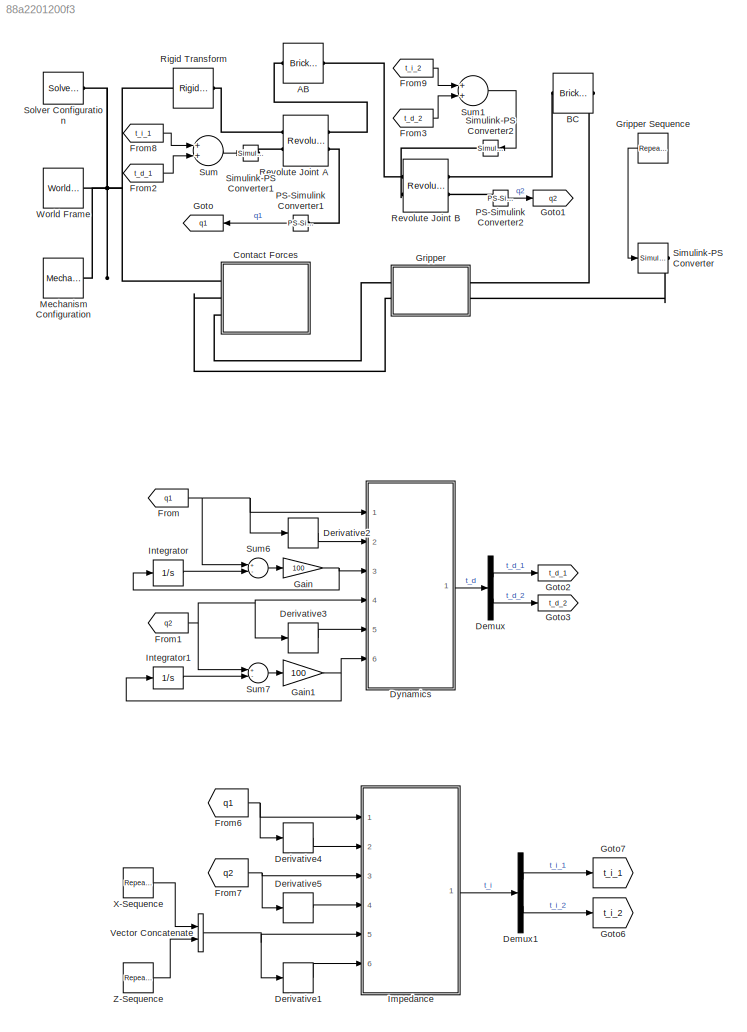
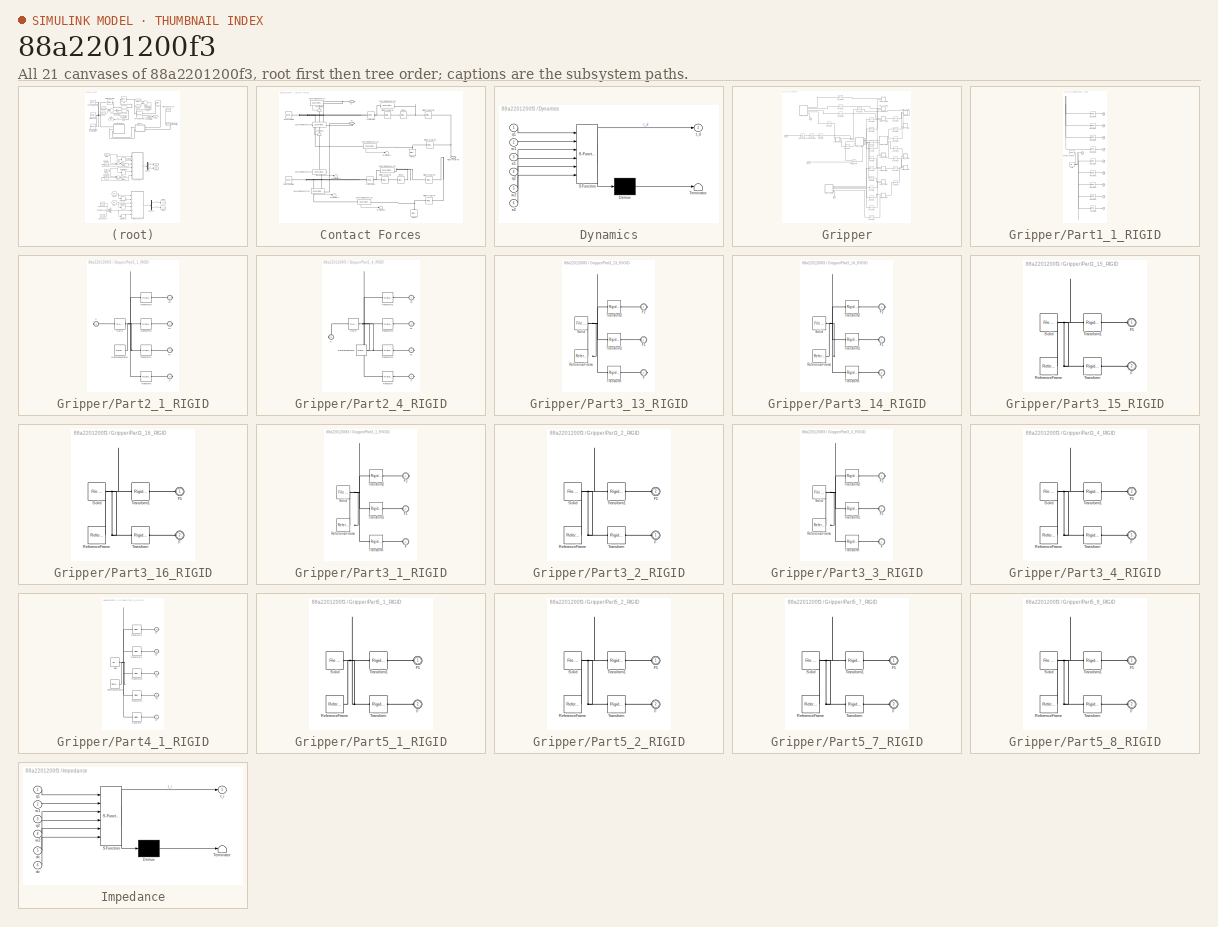
[diagram: thumbnail index - all 21 canvases of the model, root first then tree order]
MODEL slx_88a2201200f3
KIND model
CONFIG AbsTol = auto
CONFIG EnableMultiTasking = on
CONFIG FixedStep = auto
CONFIG MaxStep = auto
CONFIG MinStep = auto
CONFIG RelTol = 1e-3
CONFIG SampleTimeConstraint = Unconstrained
CONFIG Solver = VariableStepAuto
CONFIG SolverName = VariableStepAuto
CONFIG StartTime = 0.0
CONFIG StopTime = 8
BLOCK [Reference] AB  REF=sm_lib/Body Elements/Brick Solid
  Ports = [0, 0, 0, 0, 0, 1, 1]
  SourceBlock = sm_lib/Body Elements/Brick Solid
  SourceProductBaseCode = MS
  SourceProductName = Simscape Multibody
  SourceType = Brick Solid
BLOCK [Reference] BC  REF=sm_lib/Body Elements/Brick Solid
  Ports = [0, 0, 0, 0, 0, 1, 1]
  SourceBlock = sm_lib/Body Elements/Brick Solid
  SourceProductBaseCode = MS
  SourceProductName = Simscape Multibody
  SourceType = Brick Solid
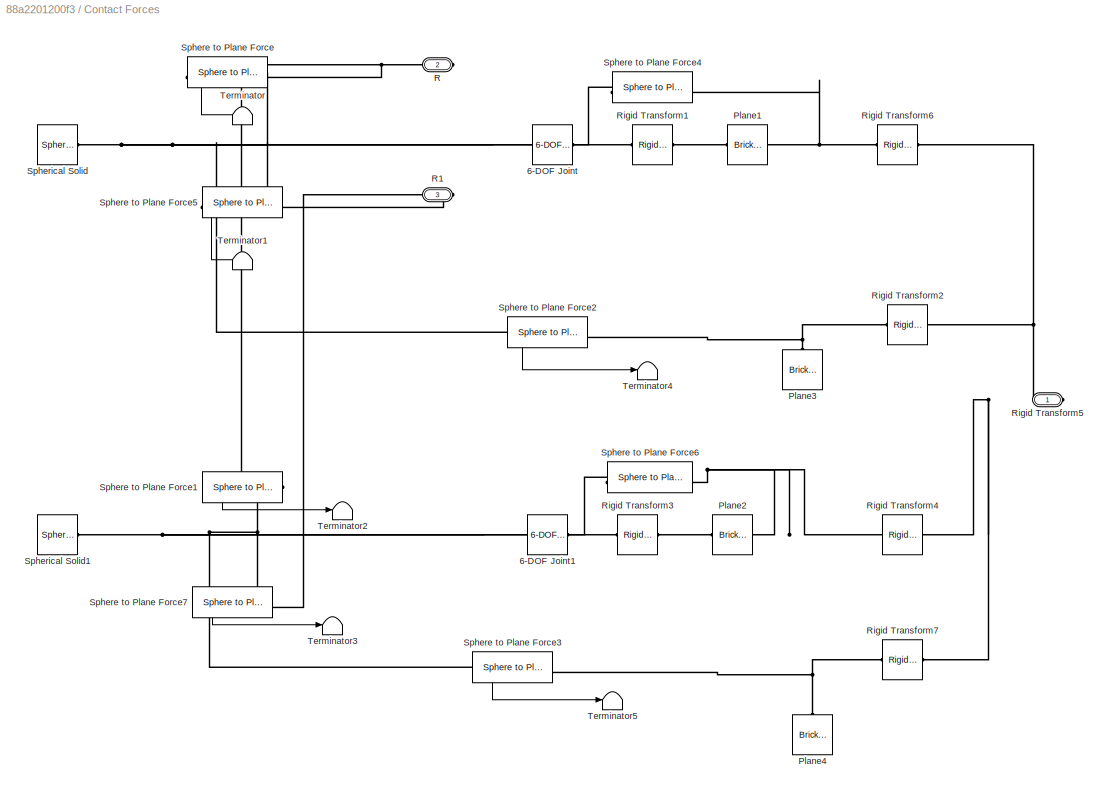
BLOCK [SubSystem] Contact Forces
  Ports = [0, 0, 0, 0, 0, 0, 3]
  RequestExecContextInheritance = off
BLOCK [Reference] Contact Forces/6-DOF Joint  REF=sm_lib/Joints/6-DOF Joint
  Ports = [0, 0, 0, 0, 0, 1, 1]
  SourceBlock = sm_lib/Joints/6-DOF Joint
  SourceProductBaseCode = MS
  SourceProductName = Simscape Multibody
  SourceType = 6-DOF Joint
BLOCK [Reference] Contact Forces/6-DOF Joint1  REF=sm_lib/Joints/6-DOF Joint
  Ports = [0, 0, 0, 0, 0, 1, 1]
  SourceBlock = sm_lib/Joints/6-DOF Joint
  SourceProductBaseCode = MS
  SourceProductName = Simscape Multibody
  SourceType = 6-DOF Joint
BLOCK [Reference] Contact Forces/Plane1  REF=sm_lib/Body Elements/Brick Solid
  Ports = [0, 0, 0, 0, 0, 1, 1]
  SourceBlock = sm_lib/Body Elements/Brick Solid
  SourceProductBaseCode = MS
  SourceProductName = Simscape Multibody
  SourceType = Brick Solid
BLOCK [Reference] Contact Forces/Plane2  REF=sm_lib/Body Elements/Brick Solid
  Ports = [0, 0, 0, 0, 0, 1, 1]
  SourceBlock = sm_lib/Body Elements/Brick Solid
  SourceProductBaseCode = MS
  SourceProductName = Simscape Multibody
  SourceType = Brick Solid
BLOCK [Reference] Contact Forces/Plane3  REF=sm_lib/Body Elements/Brick Solid
  Ports = [0, 0, 0, 0, 0, 1]
  SourceBlock = sm_lib/Body Elements/Brick Solid
  SourceProductBaseCode = MS
  SourceProductName = Simscape Multibody
  SourceType = Brick Solid
BLOCK [Reference] Contact Forces/Plane4  REF=sm_lib/Body Elements/Brick Solid
  Ports = [0, 0, 0, 0, 0, 1]
  SourceBlock = sm_lib/Body Elements/Brick Solid
  SourceProductBaseCode = MS
  SourceProductName = Simscape Multibody
  SourceType = Brick Solid
BLOCK [PMIOPort] Contact Forces/R
  Port = 2
  Side = Right
BLOCK [PMIOPort] Contact Forces/R1
  Port = 3
  Side = Right
BLOCK [Reference] Contact Forces/Rigid Transform1  REF=sm_lib/Frames and
Transforms/Rigid
Transform
  Ports = [0, 0, 0, 0, 0, 1, 1]
  SourceBlock = sm_lib/Frames and\nTransforms/Rigid\nTransform
  SourceProductBaseCode = MS
  SourceProductName = Simscape Multibody
  SourceType = Rigid\nTransform
BLOCK [Reference] Contact Forces/Rigid Transform2  REF=sm_lib/Frames and
Transforms/Rigid
Transform
  Ports = [0, 0, 0, 0, 0, 1, 1]
  SourceBlock = sm_lib/Frames and\nTransforms/Rigid\nTransform
  SourceProductBaseCode = MS
  SourceProductName = Simscape Multibody
  SourceType = Rigid\nTransform
BLOCK [Reference] Contact Forces/Rigid Transform3  REF=sm_lib/Frames and
Transforms/Rigid
Transform
  Ports = [0, 0, 0, 0, 0, 1, 1]
  SourceBlock = sm_lib/Frames and\nTransforms/Rigid\nTransform
  SourceProductBaseCode = MS
  SourceProductName = Simscape Multibody
  SourceType = Rigid\nTransform
BLOCK [Reference] Contact Forces/Rigid Transform4  REF=sm_lib/Frames and
Transforms/Rigid
Transform
  Ports = [0, 0, 0, 0, 0, 1, 1]
  SourceBlock = sm_lib/Frames and\nTransforms/Rigid\nTransform
  SourceProductBaseCode = MS
  SourceProductName = Simscape Multibody
  SourceType = Rigid\nTransform
BLOCK [PMIOPort] Contact Forces/Rigid Transform5
  Side = Right
BLOCK [Reference] Contact Forces/Rigid Transform6  REF=sm_lib/Frames and
Transforms/Rigid
Transform
  Ports = [0, 0, 0, 0, 0, 1, 1]
  SourceBlock = sm_lib/Frames and\nTransforms/Rigid\nTransform
  SourceProductBaseCode = MS
  SourceProductName = Simscape Multibody
  SourceType = Rigid\nTransform
BLOCK [Reference] Contact Forces/Rigid Transform7  REF=sm_lib/Frames and
Transforms/Rigid
Transform
  Ports = [0, 0, 0, 0, 0, 1, 1]
  SourceBlock = sm_lib/Frames and\nTransforms/Rigid\nTransform
  SourceProductBaseCode = MS
  SourceProductName = Simscape Multibody
  SourceType = Rigid\nTransform
BLOCK [Reference] Contact Forces/Sphere to Plane Force  REF=Contact_Forces_Lib/3D/Sphere to Plane Force
  Ports = [0, 1, 0, 0, 0, 1, 1]
  SourceBlock = Contact_Forces_Lib/3D/Sphere to Plane Force
  SourceProductName = Simscape Multibody Contact Forces Library
  SourceType = Sphere to Plane Force
BLOCK [Reference] Contact Forces/Sphere to Plane Force1  REF=Contact_Forces_Lib/3D/Sphere to Plane Force
  Ports = [0, 1, 0, 0, 0, 1, 1]
  SourceBlock = Contact_Forces_Lib/3D/Sphere to Plane Force
  SourceProductName = Simscape Multibody Contact Forces Library
  SourceType = Sphere to Plane Force
BLOCK [Reference] Contact Forces/Sphere to Plane Force2  REF=Contact_Forces_Lib/3D/Sphere to Plane Force
  Ports = [0, 1, 0, 0, 0, 1, 1]
  SourceBlock = Contact_Forces_Lib/3D/Sphere to Plane Force
  SourceProductName = Simscape Multibody Contact Forces Library
  SourceType = Sphere to Plane Force
BLOCK [Reference] Contact Forces/Sphere to Plane Force3  REF=Contact_Forces_Lib/3D/Sphere to Plane Force
  Ports = [0, 1, 0, 0, 0, 1, 1]
  SourceBlock = Contact_Forces_Lib/3D/Sphere to Plane Force
  SourceProductName = Simscape Multibody Contact Forces Library
  SourceType = Sphere to Plane Force
BLOCK [Reference] Contact Forces/Sphere to Plane Force4  REF=Contact_Forces_Lib/3D/Sphere to Plane Force
  Ports = [0, 1, 0, 0, 0, 1, 1]
  SourceBlock = Contact_Forces_Lib/3D/Sphere to Plane Force
  SourceProductName = Simscape Multibody Contact Forces Library
  SourceType = Sphere to Plane Force
BLOCK [Reference] Contact Forces/Sphere to Plane Force5  REF=Contact_Forces_Lib/3D/Sphere to Plane Force
  Ports = [0, 1, 0, 0, 0, 1, 1]
  SourceBlock = Contact_Forces_Lib/3D/Sphere to Plane Force
  SourceProductName = Simscape Multibody Contact Forces Library
  SourceType = Sphere to Plane Force
BLOCK [Reference] Contact Forces/Sphere to Plane Force6  REF=Contact_Forces_Lib/3D/Sphere to Plane Force
  Ports = [0, 1, 0, 0, 0, 1, 1]
  SourceBlock = Contact_Forces_Lib/3D/Sphere to Plane Force
  SourceProductName = Simscape Multibody Contact Forces Library
  SourceType = Sphere to Plane Force
BLOCK [Reference] Contact Forces/Sphere to Plane Force7  REF=Contact_Forces_Lib/3D/Sphere to Plane Force
  Ports = [0, 1, 0, 0, 0, 1, 1]
  SourceBlock = Contact_Forces_Lib/3D/Sphere to Plane Force
  SourceProductName = Simscape Multibody Contact Forces Library
  SourceType = Sphere to Plane Force
BLOCK [Reference] Contact Forces/Spherical Solid  REF=sm_lib/Body Elements/Spherical Solid
  Ports = [0, 0, 0, 0, 0, 0, 1]
  SourceBlock = sm_lib/Body Elements/Spherical Solid
  SourceProductBaseCode = MS
  SourceProductName = Simscape Multibody
  SourceType = Spherical Solid
BLOCK [Reference] Contact Forces/Spherical Solid1  REF=sm_lib/Body Elements/Spherical Solid
  Ports = [0, 0, 0, 0, 0, 0, 1]
  SourceBlock = sm_lib/Body Elements/Spherical Solid
  SourceProductBaseCode = MS
  SourceProductName = Simscape Multibody
  SourceType = Spherical Solid
BLOCK [Terminator] Contact Forces/Terminator
BLOCK [Terminator] Contact Forces/Terminator1
BLOCK [Terminator] Contact Forces/Terminator2
BLOCK [Terminator] Contact Forces/Terminator3
BLOCK [Terminator] Contact Forces/Terminator4
BLOCK [Terminator] Contact Forces/Terminator5
BLOCK [Demux] Demux
  DisplayOption = bar
  Outputs = 2
  Ports = [1, 2]
BLOCK [Demux] Demux1
  DisplayOption = bar
  Outputs = 2
  Ports = [1, 2]
BLOCK [Derivative] Derivative1
BLOCK [Derivative] Derivative2
BLOCK [Derivative] Derivative3
BLOCK [Derivative] Derivative4
BLOCK [Derivative] Derivative5
BLOCK [SubSystem] Dynamics
  ErrorFcn = Stateflow.Translate.translate
  PermitHierarchicalResolution = ExplicitOnly
  Ports = [6, 1]
  RequestExecContextInheritance = off
  SFBlockType = MATLAB Function
  TreatAsAtomicUnit = on
BLOCK [Demux] Dynamics/ Demux 
  Outputs = 1
  Ports = [1, 1]
BLOCK [S-Function] Dynamics/ SFunction 
  EnableBusSupport = on
  FunctionName = sf_sfun
  PortCounts = [6 2]
  Ports = [6, 2]
  SFcnIsStateOwnerBlock = off
  SFunctionDeploymentMode = off
  Tag = Stateflow S-Function 2
BLOCK [Terminator] Dynamics/ Terminator 
BLOCK [Inport] Dynamics/e1
  IconDisplay = Port number
  Port = 3
BLOCK [Inport] Dynamics/e2
  IconDisplay = Port number
  Port = 6
BLOCK [Inport] Dynamics/q1
  IconDisplay = Port number
BLOCK [Inport] Dynamics/q2
  IconDisplay = Port number
  Port = 4
BLOCK [Outport] Dynamics/t_d
  IconDisplay = Port number
  VectorParamsAs1DForOutWhenUnconnected = off
BLOCK [Inport] Dynamics/w1
  IconDisplay = Port number
  Port = 2
BLOCK [Inport] Dynamics/w2
  IconDisplay = Port number
  Port = 5
BLOCK [From] From
  GotoTag = q1
BLOCK [From] From1
  GotoTag = q2
BLOCK [From] From2
  GotoTag = t_d_1
BLOCK [From] From3
  GotoTag = t_d_2
BLOCK [From] From6
  GotoTag = q1
BLOCK [From] From7
  GotoTag = q2
BLOCK [From] From8
  GotoTag = t_i_1
BLOCK [From] From9
  GotoTag = t_i_2
BLOCK [Gain] Gain
  Gain = 100
  OutDataTypeStr = Inherit: Inherit via internal rule
  ParamDataTypeStr = Inherit: Inherit via internal rule
  SaturateOnIntegerOverflow = off
BLOCK [Gain] Gain1
  Gain = 100
  OutDataTypeStr = Inherit: Inherit via internal rule
  ParamDataTypeStr = Inherit: Inherit via internal rule
  SaturateOnIntegerOverflow = off
BLOCK [Goto] Goto
  GotoTag = q1
BLOCK [Goto] Goto1
  GotoTag = q2
BLOCK [Goto] Goto2
  GotoTag = t_d_1
BLOCK [Goto] Goto3
  GotoTag = t_d_2
BLOCK [Goto] Goto6
  GotoTag = t_i_2
BLOCK [Goto] Goto7
  GotoTag = t_i_1
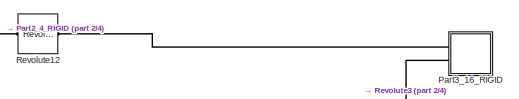
[diagram: Gripper - part 1/4, top center region]
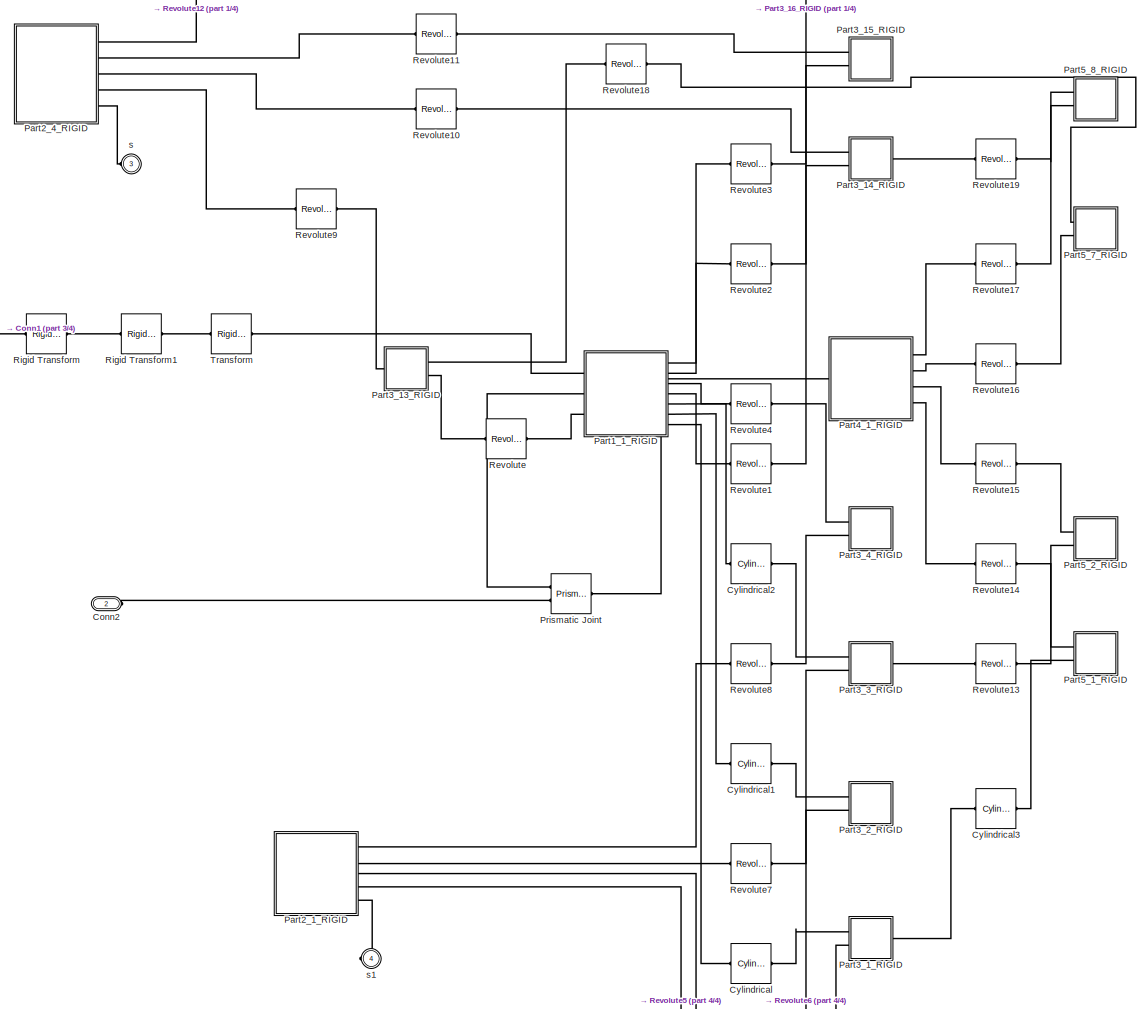
[diagram: Gripper - part 2/4, most of the canvas]
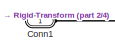
[diagram: Gripper - part 3/4, middle left region]
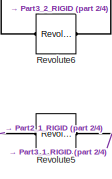
[diagram: Gripper - part 4/4, bottom right region]
BLOCK [SubSystem] Gripper
  Ports = [0, 0, 0, 0, 0, 2, 2]
  RequestExecContextInheritance = off
BLOCK [Reference] Gripper Sequence  REF=simulink/Sources/Repeating
Sequence
  Ports = [0, 1]
  SourceBlock = simulink/Sources/Repeating\nSequence
  SourceProductBaseCode = SL
  SourceProductName = Simulink
  SourceType = Repeating table
BLOCK [PMIOPort] Gripper/Conn1
  Side = Left
BLOCK [PMIOPort] Gripper/Conn2
  Port = 2
  Side = Left
BLOCK [Reference] Gripper/Cylindrical  REF=sm_lib/Joints/Cylindrical
Joint
  Ports = [0, 0, 0, 0, 0, 1, 1]
  SourceBlock = sm_lib/Joints/Cylindrical\nJoint
  SourceProductBaseCode = MS
  SourceProductName = Simscape Multibody
  SourceType = Cylindrical\nJoint
BLOCK [Reference] Gripper/Cylindrical1  REF=sm_lib/Joints/Cylindrical
Joint
  Ports = [0, 0, 0, 0, 0, 1, 1]
  SourceBlock = sm_lib/Joints/Cylindrical\nJoint
  SourceProductBaseCode = MS
  SourceProductName = Simscape Multibody
  SourceType = Cylindrical\nJoint
BLOCK [Reference] Gripper/Cylindrical2  REF=sm_lib/Joints/Cylindrical
Joint
  Ports = [0, 0, 0, 0, 0, 1, 1]
  SourceBlock = sm_lib/Joints/Cylindrical\nJoint
  SourceProductBaseCode = MS
  SourceProductName = Simscape Multibody
  SourceType = Cylindrical\nJoint
BLOCK [Reference] Gripper/Cylindrical3  REF=sm_lib/Joints/Cylindrical
Joint
  Ports = [0, 0, 0, 0, 0, 1, 1]
  SourceBlock = sm_lib/Joints/Cylindrical\nJoint
  SourceProductBaseCode = MS
  SourceProductName = Simscape Multibody
  SourceType = Cylindrical\nJoint
BLOCK [SubSystem] Gripper/Part1_1_RIGID
  Ports = [0, 0, 0, 0, 0, 3, 7]
  RequestExecContextInheritance = off
BLOCK [PMIOPort] Gripper/Part1_1_RIGID/F
  Port = 3
  Side = Left
BLOCK [PMIOPort] Gripper/Part1_1_RIGID/F1
  Port = 7
  Side = Right
BLOCK [PMIOPort] Gripper/Part1_1_RIGID/F2
  Port = 5
  Side = Right
BLOCK [PMIOPort] Gripper/Part1_1_RIGID/F3
  Port = 4
  Side = Right
BLOCK [PMIOPort] Gripper/Part1_1_RIGID/F4
  Port = 10
  Side = Right
BLOCK [PMIOPort] Gripper/Part1_1_RIGID/F5
  Port = 9
  Side = Right
BLOCK [PMIOPort] Gripper/Part1_1_RIGID/F6
  Port = 8
  Side = Right
BLOCK [PMIOPort] Gripper/Part1_1_RIGID/F7
  Port = 6
  Side = Right
BLOCK [PMIOPort] Gripper/Part1_1_RIGID/F8
  Port = 2
  Side = Left
BLOCK [PMIOPort] Gripper/Part1_1_RIGID/F9
  Side = Left
BLOCK [Reference] Gripper/Part1_1_RIGID/ReferenceFrame  REF=sm_lib/Frames and
Transforms/Reference
Frame
  Ports = [0, 0, 0, 0, 0, 0, 1]
  SourceBlock = sm_lib/Frames and\nTransforms/Reference\nFrame
  SourceProductBaseCode = MS
  SourceProductName = Simscape Multibody
  SourceType = Reference\nFrame
BLOCK [Reference] Gripper/Part1_1_RIGID/Solid  REF=sm_lib/Body Elements/File Solid
  Ports = [0, 0, 0, 0, 0, 0, 1]
  SourceBlock = sm_lib/Body Elements/File Solid
  SourceProductBaseCode = MS
  SourceProductName = Simscape Multibody
  SourceType = File Solid
BLOCK [Reference] Gripper/Part1_1_RIGID/Transform  REF=sm_lib/Frames and
Transforms/Rigid
Transform
  Ports = [0, 0, 0, 0, 0, 1, 1]
  SourceBlock = sm_lib/Frames and\nTransforms/Rigid\nTransform
  SourceProductBaseCode = MS
  SourceProductName = Simscape Multibody
  SourceType = Rigid\nTransform
BLOCK [Reference] Gripper/Part1_1_RIGID/Transform1  REF=sm_lib/Frames and
Transforms/Rigid
Transform
  Ports = [0, 0, 0, 0, 0, 1, 1]
  SourceBlock = sm_lib/Frames and\nTransforms/Rigid\nTransform
  SourceProductBaseCode = MS
  SourceProductName = Simscape Multibody
  SourceType = Rigid\nTransform
BLOCK [Reference] Gripper/Part1_1_RIGID/Transform2  REF=sm_lib/Frames and
Transforms/Rigid
Transform
  Ports = [0, 0, 0, 0, 0, 1, 1]
  SourceBlock = sm_lib/Frames and\nTransforms/Rigid\nTransform
  SourceProductBaseCode = MS
  SourceProductName = Simscape Multibody
  SourceType = Rigid\nTransform
BLOCK [Reference] Gripper/Part1_1_RIGID/Transform3  REF=sm_lib/Frames and
Transforms/Rigid
Transform
  Ports = [0, 0, 0, 0, 0, 1, 1]
  SourceBlock = sm_lib/Frames and\nTransforms/Rigid\nTransform
  SourceProductBaseCode = MS
  SourceProductName = Simscape Multibody
  SourceType = Rigid\nTransform
BLOCK [Reference] Gripper/Part1_1_RIGID/Transform4  REF=sm_lib/Frames and
Transforms/Rigid
Transform
  Ports = [0, 0, 0, 0, 0, 1, 1]
  SourceBlock = sm_lib/Frames and\nTransforms/Rigid\nTransform
  SourceProductBaseCode = MS
  SourceProductName = Simscape Multibody
  SourceType = Rigid\nTransform
BLOCK [Reference] Gripper/Part1_1_RIGID/Transform5  REF=sm_lib/Frames and
Transforms/Rigid
Transform
  Ports = [0, 0, 0, 0, 0, 1, 1]
  SourceBlock = sm_lib/Frames and\nTransforms/Rigid\nTransform
  SourceProductBaseCode = MS
  SourceProductName = Simscape Multibody
  SourceType = Rigid\nTransform
BLOCK [Reference] Gripper/Part1_1_RIGID/Transform6  REF=sm_lib/Frames and
Transforms/Rigid
Transform
  Ports = [0, 0, 0, 0, 0, 1, 1]
  SourceBlock = sm_lib/Frames and\nTransforms/Rigid\nTransform
  SourceProductBaseCode = MS
  SourceProductName = Simscape Multibody
  SourceType = Rigid\nTransform
BLOCK [Reference] Gripper/Part1_1_RIGID/Transform7  REF=sm_lib/Frames and
Transforms/Rigid
Transform
  Ports = [0, 0, 0, 0, 0, 1, 1]
  SourceBlock = sm_lib/Frames and\nTransforms/Rigid\nTransform
  SourceProductBaseCode = MS
  SourceProductName = Simscape Multibody
  SourceType = Rigid\nTransform
BLOCK [Reference] Gripper/Part1_1_RIGID/Transform8  REF=sm_lib/Frames and
Transforms/Rigid
Transform
  Ports = [0, 0, 0, 0, 0, 1, 1]
  SourceBlock = sm_lib/Frames and\nTransforms/Rigid\nTransform
  SourceProductBaseCode = MS
  SourceProductName = Simscape Multibody
  SourceType = Rigid\nTransform
BLOCK [SubSystem] Gripper/Part2_1_RIGID
  Ports = [0, 0, 0, 0, 0, 0, 5]
  RequestExecContextInheritance = off
BLOCK [PMIOPort] Gripper/Part2_1_RIGID/F
  Port = 4
  Side = Right
BLOCK [PMIOPort] Gripper/Part2_1_RIGID/F1
  Port = 3
  Side = Right
BLOCK [PMIOPort] Gripper/Part2_1_RIGID/F2
  Port = 2
  Side = Right
BLOCK [PMIOPort] Gripper/Part2_1_RIGID/F3
  Side = Right
BLOCK [Reference] Gripper/Part2_1_RIGID/ReferenceFrame  REF=sm_lib/Frames and
Transforms/Reference
Frame
  Ports = [0, 0, 0, 0, 0, 0, 1]
  SourceBlock = sm_lib/Frames and\nTransforms/Reference\nFrame
  SourceProductBaseCode = MS
  SourceProductName = Simscape Multibody
  SourceType = Reference\nFrame
BLOCK [Reference] Gripper/Part2_1_RIGID/Solid  REF=sm_lib/Body Elements/File Solid
  Ports = [0, 0, 0, 0, 0, 1, 1]
  SourceBlock = sm_lib/Body Elements/File Solid
  SourceProductBaseCode = MS
  SourceProductName = Simscape Multibody
  SourceType = File Solid
BLOCK [Reference] Gripper/Part2_1_RIGID/Transform  REF=sm_lib/Frames and
Transforms/Rigid
Transform
  Ports = [0, 0, 0, 0, 0, 1, 1]
  SourceBlock = sm_lib/Frames and\nTransforms/Rigid\nTransform
  SourceProductBaseCode = MS
  SourceProductName = Simscape Multibody
  SourceType = Rigid\nTransform
BLOCK [Reference] Gripper/Part2_1_RIGID/Transform1  REF=sm_lib/Frames and
Transforms/Rigid
Transform
  Ports = [0, 0, 0, 0, 0, 1, 1]
  SourceBlock = sm_lib/Frames and\nTransforms/Rigid\nTransform
  SourceProductBaseCode = MS
  SourceProductName = Simscape Multibody
  SourceType = Rigid\nTransform
BLOCK [Reference] Gripper/Part2_1_RIGID/Transform2  REF=sm_lib/Frames and
Transforms/Rigid
Transform
  Ports = [0, 0, 0, 0, 0, 1, 1]
  SourceBlock = sm_lib/Frames and\nTransforms/Rigid\nTransform
  SourceProductBaseCode = MS
  SourceProductName = Simscape Multibody
  SourceType = Rigid\nTransform
BLOCK [Reference] Gripper/Part2_1_RIGID/Transform3  REF=sm_lib/Frames and
Transforms/Rigid
Transform
  Ports = [0, 0, 0, 0, 0, 1, 1]
  SourceBlock = sm_lib/Frames and\nTransforms/Rigid\nTransform
  SourceProductBaseCode = MS
  SourceProductName = Simscape Multibody
  SourceType = Rigid\nTransform
BLOCK [PMIOPort] Gripper/Part2_1_RIGID/s
  Port = 5
  Side = Right
BLOCK [SubSystem] Gripper/Part2_4_RIGID
  Ports = [0, 0, 0, 0, 0, 0, 5]
  RequestExecContextInheritance = off
BLOCK [PMIOPort] Gripper/Part2_4_RIGID/F
  Port = 4
  Side = Right
BLOCK [PMIOPort] Gripper/Part2_4_RIGID/F1
  Port = 3
  Side = Right
BLOCK [PMIOPort] Gripper/Part2_4_RIGID/F2
  Port = 2
  Side = Right
BLOCK [PMIOPort] Gripper/Part2_4_RIGID/F3
  Side = Right
BLOCK [Reference] Gripper/Part2_4_RIGID/ReferenceFrame  REF=sm_lib/Frames and
Transforms/Reference
Frame
  Ports = [0, 0, 0, 0, 0, 0, 1]
  SourceBlock = sm_lib/Frames and\nTransforms/Reference\nFrame
  SourceProductBaseCode = MS
  SourceProductName = Simscape Multibody
  SourceType = Reference\nFrame
BLOCK [Reference] Gripper/Part2_4_RIGID/Solid  REF=sm_lib/Body Elements/File Solid
  Ports = [0, 0, 0, 0, 0, 1, 1]
  SourceBlock = sm_lib/Body Elements/File Solid
  SourceProductBaseCode = MS
  SourceProductName = Simscape Multibody
  SourceType = File Solid
BLOCK [Reference] Gripper/Part2_4_RIGID/Transform  REF=sm_lib/Frames and
Transforms/Rigid
Transform
  Ports = [0, 0, 0, 0, 0, 1, 1]
  SourceBlock = sm_lib/Frames and\nTransforms/Rigid\nTransform
  SourceProductBaseCode = MS
  SourceProductName = Simscape Multibody
  SourceType = Rigid\nTransform
BLOCK [Reference] Gripper/Part2_4_RIGID/Transform1  REF=sm_lib/Frames and
Transforms/Rigid
Transform
  Ports = [0, 0, 0, 0, 0, 1, 1]
  SourceBlock = sm_lib/Frames and\nTransforms/Rigid\nTransform
  SourceProductBaseCode = MS
  SourceProductName = Simscape Multibody
  SourceType = Rigid\nTransform
BLOCK [Reference] Gripper/Part2_4_RIGID/Transform2  REF=sm_lib/Frames and
Transforms/Rigid
Transform
  Ports = [0, 0, 0, 0, 0, 1, 1]
  SourceBlock = sm_lib/Frames and\nTransforms/Rigid\nTransform
  SourceProductBaseCode = MS
  SourceProductName = Simscape Multibody
  SourceType = Rigid\nTransform
BLOCK [Reference] Gripper/Part2_4_RIGID/Transform3  REF=sm_lib/Frames and
Transforms/Rigid
Transform
  Ports = [0, 0, 0, 0, 0, 1, 1]
  SourceBlock = sm_lib/Frames and\nTransforms/Rigid\nTransform
  SourceProductBaseCode = MS
  SourceProductName = Simscape Multibody
  SourceType = Rigid\nTransform
BLOCK [PMIOPort] Gripper/Part2_4_RIGID/s
  Port = 5
  Side = Right
BLOCK [SubSystem] Gripper/Part3_13_RIGID
  Ports = [0, 0, 0, 0, 0, 1, 2]
  RequestExecContextInheritance = off
BLOCK [PMIOPort] Gripper/Part3_13_RIGID/F
  Port = 3
  Side = Right
BLOCK [PMIOPort] Gripper/Part3_13_RIGID/F1
  Side = Left
BLOCK [PMIOPort] Gripper/Part3_13_RIGID/F2
  Port = 2
  Side = Right
BLOCK [Reference] Gripper/Part3_13_RIGID/ReferenceFrame  REF=sm_lib/Frames and
Transforms/Reference
Frame
  Ports = [0, 0, 0, 0, 0, 0, 1]
  SourceBlock = sm_lib/Frames and\nTransforms/Reference\nFrame
  SourceProductBaseCode = MS
  SourceProductName = Simscape Multibody
  SourceType = Reference\nFrame
BLOCK [Reference] Gripper/Part3_13_RIGID/Solid  REF=sm_lib/Body Elements/File Solid
  Ports = [0, 0, 0, 0, 0, 0, 1]
  SourceBlock = sm_lib/Body Elements/File Solid
  SourceProductBaseCode = MS
  SourceProductName = Simscape Multibody
  SourceType = File Solid
BLOCK [Reference] Gripper/Part3_13_RIGID/Transform  REF=sm_lib/Frames and
Transforms/Rigid
Transform
  Ports = [0, 0, 0, 0, 0, 1, 1]
  SourceBlock = sm_lib/Frames and\nTransforms/Rigid\nTransform
  SourceProductBaseCode = MS
  SourceProductName = Simscape Multibody
  SourceType = Rigid\nTransform
BLOCK [Reference] Gripper/Part3_13_RIGID/Transform1  REF=sm_lib/Frames and
Transforms/Rigid
Transform
  Ports = [0, 0, 0, 0, 0, 1, 1]
  SourceBlock = sm_lib/Frames and\nTransforms/Rigid\nTransform
  SourceProductBaseCode = MS
  SourceProductName = Simscape Multibody
  SourceType = Rigid\nTransform
BLOCK [Reference] Gripper/Part3_13_RIGID/Transform2  REF=sm_lib/Frames and
Transforms/Rigid
Transform
  Ports = [0, 0, 0, 0, 0, 1, 1]
  SourceBlock = sm_lib/Frames and\nTransforms/Rigid\nTransform
  SourceProductBaseCode = MS
  SourceProductName = Simscape Multibody
  SourceType = Rigid\nTransform
BLOCK [SubSystem] Gripper/Part3_14_RIGID
  Ports = [0, 0, 0, 0, 0, 2, 1]
  RequestExecContextInheritance = off
BLOCK [PMIOPort] Gripper/Part3_14_RIGID/F
  Port = 2
  Side = Left
BLOCK [PMIOPort] Gripper/Part3_14_RIGID/F1
  Side = Left
BLOCK [PMIOPort] Gripper/Part3_14_RIGID/F2
  Port = 3
  Side = Right
BLOCK [Reference] Gripper/Part3_14_RIGID/ReferenceFrame  REF=sm_lib/Frames and
Transforms/Reference
Frame
  Ports = [0, 0, 0, 0, 0, 0, 1]
  SourceBlock = sm_lib/Frames and\nTransforms/Reference\nFrame
  SourceProductBaseCode = MS
  SourceProductName = Simscape Multibody
  SourceType = Reference\nFrame
BLOCK [Reference] Gripper/Part3_14_RIGID/Solid  REF=sm_lib/Body Elements/File Solid
  Ports = [0, 0, 0, 0, 0, 0, 1]
  SourceBlock = sm_lib/Body Elements/File Solid
  SourceProductBaseCode = MS
  SourceProductName = Simscape Multibody
  SourceType = File Solid
BLOCK [Reference] Gripper/Part3_14_RIGID/Transform  REF=sm_lib/Frames and
Transforms/Rigid
Transform
  Ports = [0, 0, 0, 0, 0, 1, 1]
  SourceBlock = sm_lib/Frames and\nTransforms/Rigid\nTransform
  SourceProductBaseCode = MS
  SourceProductName = Simscape Multibody
  SourceType = Rigid\nTransform
BLOCK [Reference] Gripper/Part3_14_RIGID/Transform1  REF=sm_lib/Frames and
Transforms/Rigid
Transform
  Ports = [0, 0, 0, 0, 0, 1, 1]
  SourceBlock = sm_lib/Frames and\nTransforms/Rigid\nTransform
  SourceProductBaseCode = MS
  SourceProductName = Simscape Multibody
  SourceType = Rigid\nTransform
BLOCK [Reference] Gripper/Part3_14_RIGID/Transform2  REF=sm_lib/Frames and
Transforms/Rigid
Transform
  Ports = [0, 0, 0, 0, 0, 1, 1]
  SourceBlock = sm_lib/Frames and\nTransforms/Rigid\nTransform
  SourceProductBaseCode = MS
  SourceProductName = Simscape Multibody
  SourceType = Rigid\nTransform
BLOCK [SubSystem] Gripper/Part3_15_RIGID
  Ports = [0, 0, 0, 0, 0, 2]
  RequestExecContextInheritance = off
BLOCK [PMIOPort] Gripper/Part3_15_RIGID/F
  Port = 2
  Side = Left
BLOCK [PMIOPort] Gripper/Part3_15_RIGID/F1
  Side = Left
BLOCK [Reference] Gripper/Part3_15_RIGID/ReferenceFrame  REF=sm_lib/Frames and
Transforms/Reference
Frame
  Ports = [0, 0, 0, 0, 0, 0, 1]
  SourceBlock = sm_lib/Frames and\nTransforms/Reference\nFrame
  SourceProductBaseCode = MS
  SourceProductName = Simscape Multibody
  SourceType = Reference\nFrame
BLOCK [Reference] Gripper/Part3_15_RIGID/Solid  REF=sm_lib/Body Elements/File Solid
  Ports = [0, 0, 0, 0, 0, 0, 1]
  SourceBlock = sm_lib/Body Elements/File Solid
  SourceProductBaseCode = MS
  SourceProductName = Simscape Multibody
  SourceType = File Solid
BLOCK [Reference] Gripper/Part3_15_RIGID/Transform  REF=sm_lib/Frames and
Transforms/Rigid
Transform
  Ports = [0, 0, 0, 0, 0, 1, 1]
  SourceBlock = sm_lib/Frames and\nTransforms/Rigid\nTransform
  SourceProductBaseCode = MS
  SourceProductName = Simscape Multibody
  SourceType = Rigid\nTransform
BLOCK [Reference] Gripper/Part3_15_RIGID/Transform1  REF=sm_lib/Frames and
Transforms/Rigid
Transform
  Ports = [0, 0, 0, 0, 0, 1, 1]
  SourceBlock = sm_lib/Frames and\nTransforms/Rigid\nTransform
  SourceProductBaseCode = MS
  SourceProductName = Simscape Multibody
  SourceType = Rigid\nTransform
BLOCK [SubSystem] Gripper/Part3_16_RIGID
  Ports = [0, 0, 0, 0, 0, 2]
  RequestExecContextInheritance = off
BLOCK [PMIOPort] Gripper/Part3_16_RIGID/F
  Port = 2
  Side = Left
BLOCK [PMIOPort] Gripper/Part3_16_RIGID/F1
  Side = Left
BLOCK [Reference] Gripper/Part3_16_RIGID/ReferenceFrame  REF=sm_lib/Frames and
Transforms/Reference
Frame
  Ports = [0, 0, 0, 0, 0, 0, 1]
  SourceBlock = sm_lib/Frames and\nTransforms/Reference\nFrame
  SourceProductBaseCode = MS
  SourceProductName = Simscape Multibody
  SourceType = Reference\nFrame
BLOCK [Reference] Gripper/Part3_16_RIGID/Solid  REF=sm_lib/Body Elements/File Solid
  Ports = [0, 0, 0, 0, 0, 0, 1]
  SourceBlock = sm_lib/Body Elements/File Solid
  SourceProductBaseCode = MS
  SourceProductName = Simscape Multibody
  SourceType = File Solid
BLOCK [Reference] Gripper/Part3_16_RIGID/Transform  REF=sm_lib/Frames and
Transforms/Rigid
Transform
  Ports = [0, 0, 0, 0, 0, 1, 1]
  SourceBlock = sm_lib/Frames and\nTransforms/Rigid\nTransform
  SourceProductBaseCode = MS
  SourceProductName = Simscape Multibody
  SourceType = Rigid\nTransform
BLOCK [Reference] Gripper/Part3_16_RIGID/Transform1  REF=sm_lib/Frames and
Transforms/Rigid
Transform
  Ports = [0, 0, 0, 0, 0, 1, 1]
  SourceBlock = sm_lib/Frames and\nTransforms/Rigid\nTransform
  SourceProductBaseCode = MS
  SourceProductName = Simscape Multibody
  SourceType = Rigid\nTransform
BLOCK [SubSystem] Gripper/Part3_1_RIGID
  Ports = [0, 0, 0, 0, 0, 2, 1]
  RequestExecContextInheritance = off
BLOCK [PMIOPort] Gripper/Part3_1_RIGID/F
  Side = Left
BLOCK [PMIOPort] Gripper/Part3_1_RIGID/F1
  Port = 2
  Side = Left
BLOCK [PMIOPort] Gripper/Part3_1_RIGID/F2
  Port = 3
  Side = Right
BLOCK [Reference] Gripper/Part3_1_RIGID/ReferenceFrame  REF=sm_lib/Frames and
Transforms/Reference
Frame
  Ports = [0, 0, 0, 0, 0, 0, 1]
  SourceBlock = sm_lib/Frames and\nTransforms/Reference\nFrame
  SourceProductBaseCode = MS
  SourceProductName = Simscape Multibody
  SourceType = Reference\nFrame
BLOCK [Reference] Gripper/Part3_1_RIGID/Solid  REF=sm_lib/Body Elements/File Solid
  Ports = [0, 0, 0, 0, 0, 0, 1]
  SourceBlock = sm_lib/Body Elements/File Solid
  SourceProductBaseCode = MS
  SourceProductName = Simscape Multibody
  SourceType = File Solid
BLOCK [Reference] Gripper/Part3_1_RIGID/Transform  REF=sm_lib/Frames and
Transforms/Rigid
Transform
  Ports = [0, 0, 0, 0, 0, 1, 1]
  SourceBlock = sm_lib/Frames and\nTransforms/Rigid\nTransform
  SourceProductBaseCode = MS
  SourceProductName = Simscape Multibody
  SourceType = Rigid\nTransform
BLOCK [Reference] Gripper/Part3_1_RIGID/Transform1  REF=sm_lib/Frames and
Transforms/Rigid
Transform
  Ports = [0, 0, 0, 0, 0, 1, 1]
  SourceBlock = sm_lib/Frames and\nTransforms/Rigid\nTransform
  SourceProductBaseCode = MS
  SourceProductName = Simscape Multibody
  SourceType = Rigid\nTransform
BLOCK [Reference] Gripper/Part3_1_RIGID/Transform2  REF=sm_lib/Frames and
Transforms/Rigid
Transform
  Ports = [0, 0, 0, 0, 0, 1, 1]
  SourceBlock = sm_lib/Frames and\nTransforms/Rigid\nTransform
  SourceProductBaseCode = MS
  SourceProductName = Simscape Multibody
  SourceType = Rigid\nTransform
BLOCK [SubSystem] Gripper/Part3_2_RIGID
  Ports = [0, 0, 0, 0, 0, 2]
  RequestExecContextInheritance = off
BLOCK [PMIOPort] Gripper/Part3_2_RIGID/F
  Side = Left
BLOCK [PMIOPort] Gripper/Part3_2_RIGID/F1
  Port = 2
  Side = Left
BLOCK [Reference] Gripper/Part3_2_RIGID/ReferenceFrame  REF=sm_lib/Frames and
Transforms/Reference
Frame
  Ports = [0, 0, 0, 0, 0, 0, 1]
  SourceBlock = sm_lib/Frames and\nTransforms/Reference\nFrame
  SourceProductBaseCode = MS
  SourceProductName = Simscape Multibody
  SourceType = Reference\nFrame
BLOCK [Reference] Gripper/Part3_2_RIGID/Solid  REF=sm_lib/Body Elements/File Solid
  Ports = [0, 0, 0, 0, 0, 0, 1]
  SourceBlock = sm_lib/Body Elements/File Solid
  SourceProductBaseCode = MS
  SourceProductName = Simscape Multibody
  SourceType = File Solid
BLOCK [Reference] Gripper/Part3_2_RIGID/Transform  REF=sm_lib/Frames and
Transforms/Rigid
Transform
  Ports = [0, 0, 0, 0, 0, 1, 1]
  SourceBlock = sm_lib/Frames and\nTransforms/Rigid\nTransform
  SourceProductBaseCode = MS
  SourceProductName = Simscape Multibody
  SourceType = Rigid\nTransform
BLOCK [Reference] Gripper/Part3_2_RIGID/Transform1  REF=sm_lib/Frames and
Transforms/Rigid
Transform
  Ports = [0, 0, 0, 0, 0, 1, 1]
  SourceBlock = sm_lib/Frames and\nTransforms/Rigid\nTransform
  SourceProductBaseCode = MS
  SourceProductName = Simscape Multibody
  SourceType = Rigid\nTransform
BLOCK [SubSystem] Gripper/Part3_3_RIGID
  Ports = [0, 0, 0, 0, 0, 2, 1]
  RequestExecContextInheritance = off
BLOCK [PMIOPort] Gripper/Part3_3_RIGID/F
  Side = Left
BLOCK [PMIOPort] Gripper/Part3_3_RIGID/F1
  Port = 2
  Side = Left
BLOCK [PMIOPort] Gripper/Part3_3_RIGID/F2
  Port = 3
  Side = Right
BLOCK [Reference] Gripper/Part3_3_RIGID/ReferenceFrame  REF=sm_lib/Frames and
Transforms/Reference
Frame
  Ports = [0, 0, 0, 0, 0, 0, 1]
  SourceBlock = sm_lib/Frames and\nTransforms/Reference\nFrame
  SourceProductBaseCode = MS
  SourceProductName = Simscape Multibody
  SourceType = Reference\nFrame
BLOCK [Reference] Gripper/Part3_3_RIGID/Solid  REF=sm_lib/Body Elements/File Solid
  Ports = [0, 0, 0, 0, 0, 0, 1]
  SourceBlock = sm_lib/Body Elements/File Solid
  SourceProductBaseCode = MS
  SourceProductName = Simscape Multibody
  SourceType = File Solid
BLOCK [Reference] Gripper/Part3_3_RIGID/Transform  REF=sm_lib/Frames and
Transforms/Rigid
Transform
  Ports = [0, 0, 0, 0, 0, 1, 1]
  SourceBlock = sm_lib/Frames and\nTransforms/Rigid\nTransform
  SourceProductBaseCode = MS
  SourceProductName = Simscape Multibody
  SourceType = Rigid\nTransform
BLOCK [Reference] Gripper/Part3_3_RIGID/Transform1  REF=sm_lib/Frames and
Transforms/Rigid
Transform
  Ports = [0, 0, 0, 0, 0, 1, 1]
  SourceBlock = sm_lib/Frames and\nTransforms/Rigid\nTransform
  SourceProductBaseCode = MS
  SourceProductName = Simscape Multibody
  SourceType = Rigid\nTransform
BLOCK [Reference] Gripper/Part3_3_RIGID/Transform2  REF=sm_lib/Frames and
Transforms/Rigid
Transform
  Ports = [0, 0, 0, 0, 0, 1, 1]
  SourceBlock = sm_lib/Frames and\nTransforms/Rigid\nTransform
  SourceProductBaseCode = MS
  SourceProductName = Simscape Multibody
  SourceType = Rigid\nTransform
BLOCK [SubSystem] Gripper/Part3_4_RIGID
  Ports = [0, 0, 0, 0, 0, 2]
  RequestExecContextInheritance = off
BLOCK [PMIOPort] Gripper/Part3_4_RIGID/F
  Side = Left
BLOCK [PMIOPort] Gripper/Part3_4_RIGID/F1
  Port = 2
  Side = Left
BLOCK [Reference] Gripper/Part3_4_RIGID/ReferenceFrame  REF=sm_lib/Frames and
Transforms/Reference
Frame
  Ports = [0, 0, 0, 0, 0, 0, 1]
  SourceBlock = sm_lib/Frames and\nTransforms/Reference\nFrame
  SourceProductBaseCode = MS
  SourceProductName = Simscape Multibody
  SourceType = Reference\nFrame
BLOCK [Reference] Gripper/Part3_4_RIGID/Solid  REF=sm_lib/Body Elements/File Solid
  Ports = [0, 0, 0, 0, 0, 0, 1]
  SourceBlock = sm_lib/Body Elements/File Solid
  SourceProductBaseCode = MS
  SourceProductName = Simscape Multibody
  SourceType = File Solid
BLOCK [Reference] Gripper/Part3_4_RIGID/Transform  REF=sm_lib/Frames and
Transforms/Rigid
Transform
  Ports = [0, 0, 0, 0, 0, 1, 1]
  SourceBlock = sm_lib/Frames and\nTransforms/Rigid\nTransform
  SourceProductBaseCode = MS
  SourceProductName = Simscape Multibody
  SourceType = Rigid\nTransform
BLOCK [Reference] Gripper/Part3_4_RIGID/Transform1  REF=sm_lib/Frames and
Transforms/Rigid
Transform
  Ports = [0, 0, 0, 0, 0, 1, 1]
  SourceBlock = sm_lib/Frames and\nTransforms/Rigid\nTransform
  SourceProductBaseCode = MS
  SourceProductName = Simscape Multibody
  SourceType = Rigid\nTransform
BLOCK [SubSystem] Gripper/Part4_1_RIGID
  Ports = [0, 0, 0, 0, 0, 1, 4]
  RequestExecContextInheritance = off
BLOCK [PMIOPort] Gripper/Part4_1_RIGID/F
  Side = Left
BLOCK [PMIOPort] Gripper/Part4_1_RIGID/F1
  Port = 5
  Side = Right
BLOCK [PMIOPort] Gripper/Part4_1_RIGID/F2
  Port = 4
  Side = Right
BLOCK [PMIOPort] Gripper/Part4_1_RIGID/F3
  Port = 3
  Side = Right
BLOCK [PMIOPort] Gripper/Part4_1_RIGID/F4
  Port = 2
  Side = Right
BLOCK [Reference] Gripper/Part4_1_RIGID/ReferenceFrame  REF=sm_lib/Frames and
Transforms/Reference
Frame
  Ports = [0, 0, 0, 0, 0, 0, 1]
  SourceBlock = sm_lib/Frames and\nTransforms/Reference\nFrame
  SourceProductBaseCode = MS
  SourceProductName = Simscape Multibody
  SourceType = Reference\nFrame
BLOCK [Reference] Gripper/Part4_1_RIGID/Solid  REF=sm_lib/Body Elements/File Solid
  Ports = [0, 0, 0, 0, 0, 0, 1]
  SourceBlock = sm_lib/Body Elements/File Solid
  SourceProductBaseCode = MS
  SourceProductName = Simscape Multibody
  SourceType = File Solid
BLOCK [Reference] Gripper/Part4_1_RIGID/Transform  REF=sm_lib/Frames and
Transforms/Rigid
Transform
  Ports = [0, 0, 0, 0, 0, 1, 1]
  SourceBlock = sm_lib/Frames and\nTransforms/Rigid\nTransform
  SourceProductBaseCode = MS
  SourceProductName = Simscape Multibody
  SourceType = Rigid\nTransform
BLOCK [Reference] Gripper/Part4_1_RIGID/Transform1  REF=sm_lib/Frames and
Transforms/Rigid
Transform
  Ports = [0, 0, 0, 0, 0, 1, 1]
  SourceBlock = sm_lib/Frames and\nTransforms/Rigid\nTransform
  SourceProductBaseCode = MS
  SourceProductName = Simscape Multibody
  SourceType = Rigid\nTransform
BLOCK [Reference] Gripper/Part4_1_RIGID/Transform2  REF=sm_lib/Frames and
Transforms/Rigid
Transform
  Ports = [0, 0, 0, 0, 0, 1, 1]
  SourceBlock = sm_lib/Frames and\nTransforms/Rigid\nTransform
  SourceProductBaseCode = MS
  SourceProductName = Simscape Multibody
  SourceType = Rigid\nTransform
BLOCK [Reference] Gripper/Part4_1_RIGID/Transform3  REF=sm_lib/Frames and
Transforms/Rigid
Transform
  Ports = [0, 0, 0, 0, 0, 1, 1]
  SourceBlock = sm_lib/Frames and\nTransforms/Rigid\nTransform
  SourceProductBaseCode = MS
  SourceProductName = Simscape Multibody
  SourceType = Rigid\nTransform
BLOCK [Reference] Gripper/Part4_1_RIGID/Transform4  REF=sm_lib/Frames and
Transforms/Rigid
Transform
  Ports = [0, 0, 0, 0, 0, 1, 1]
  SourceBlock = sm_lib/Frames and\nTransforms/Rigid\nTransform
  SourceProductBaseCode = MS
  SourceProductName = Simscape Multibody
  SourceType = Rigid\nTransform
BLOCK [SubSystem] Gripper/Part5_1_RIGID
  Ports = [0, 0, 0, 0, 0, 2]
  RequestExecContextInheritance = off
BLOCK [PMIOPort] Gripper/Part5_1_RIGID/F
  Port = 2
  Side = Left
BLOCK [PMIOPort] Gripper/Part5_1_RIGID/F1
  Side = Left
BLOCK [Reference] Gripper/Part5_1_RIGID/ReferenceFrame  REF=sm_lib/Frames and
Transforms/Reference
Frame
  Ports = [0, 0, 0, 0, 0, 0, 1]
  SourceBlock = sm_lib/Frames and\nTransforms/Reference\nFrame
  SourceProductBaseCode = MS
  SourceProductName = Simscape Multibody
  SourceType = Reference\nFrame
BLOCK [Reference] Gripper/Part5_1_RIGID/Solid  REF=sm_lib/Body Elements/File Solid
  Ports = [0, 0, 0, 0, 0, 0, 1]
  SourceBlock = sm_lib/Body Elements/File Solid
  SourceProductBaseCode = MS
  SourceProductName = Simscape Multibody
  SourceType = File Solid
BLOCK [Reference] Gripper/Part5_1_RIGID/Transform  REF=sm_lib/Frames and
Transforms/Rigid
Transform
  Ports = [0, 0, 0, 0, 0, 1, 1]
  SourceBlock = sm_lib/Frames and\nTransforms/Rigid\nTransform
  SourceProductBaseCode = MS
  SourceProductName = Simscape Multibody
  SourceType = Rigid\nTransform
BLOCK [Reference] Gripper/Part5_1_RIGID/Transform1  REF=sm_lib/Frames and
Transforms/Rigid
Transform
  Ports = [0, 0, 0, 0, 0, 1, 1]
  SourceBlock = sm_lib/Frames and\nTransforms/Rigid\nTransform
  SourceProductBaseCode = MS
  SourceProductName = Simscape Multibody
  SourceType = Rigid\nTransform
BLOCK [SubSystem] Gripper/Part5_2_RIGID
  Ports = [0, 0, 0, 0, 0, 2]
  RequestExecContextInheritance = off
BLOCK [PMIOPort] Gripper/Part5_2_RIGID/F
  Port = 2
  Side = Left
BLOCK [PMIOPort] Gripper/Part5_2_RIGID/F1
  Side = Left
BLOCK [Reference] Gripper/Part5_2_RIGID/ReferenceFrame  REF=sm_lib/Frames and
Transforms/Reference
Frame
  Ports = [0, 0, 0, 0, 0, 0, 1]
  SourceBlock = sm_lib/Frames and\nTransforms/Reference\nFrame
  SourceProductBaseCode = MS
  SourceProductName = Simscape Multibody
  SourceType = Reference\nFrame
BLOCK [Reference] Gripper/Part5_2_RIGID/Solid  REF=sm_lib/Body Elements/File Solid
  Ports = [0, 0, 0, 0, 0, 0, 1]
  SourceBlock = sm_lib/Body Elements/File Solid
  SourceProductBaseCode = MS
  SourceProductName = Simscape Multibody
  SourceType = File Solid
BLOCK [Reference] Gripper/Part5_2_RIGID/Transform  REF=sm_lib/Frames and
Transforms/Rigid
Transform
  Ports = [0, 0, 0, 0, 0, 1, 1]
  SourceBlock = sm_lib/Frames and\nTransforms/Rigid\nTransform
  SourceProductBaseCode = MS
  SourceProductName = Simscape Multibody
  SourceType = Rigid\nTransform
BLOCK [Reference] Gripper/Part5_2_RIGID/Transform1  REF=sm_lib/Frames and
Transforms/Rigid
Transform
  Ports = [0, 0, 0, 0, 0, 1, 1]
  SourceBlock = sm_lib/Frames and\nTransforms/Rigid\nTransform
  SourceProductBaseCode = MS
  SourceProductName = Simscape Multibody
  SourceType = Rigid\nTransform
BLOCK [SubSystem] Gripper/Part5_7_RIGID
  Ports = [0, 0, 0, 0, 0, 2]
  RequestExecContextInheritance = off
BLOCK [PMIOPort] Gripper/Part5_7_RIGID/F
  Port = 2
  Side = Left
BLOCK [PMIOPort] Gripper/Part5_7_RIGID/F1
  Side = Left
BLOCK [Reference] Gripper/Part5_7_RIGID/ReferenceFrame  REF=sm_lib/Frames and
Transforms/Reference
Frame
  Ports = [0, 0, 0, 0, 0, 0, 1]
  SourceBlock = sm_lib/Frames and\nTransforms/Reference\nFrame
  SourceProductBaseCode = MS
  SourceProductName = Simscape Multibody
  SourceType = Reference\nFrame
BLOCK [Reference] Gripper/Part5_7_RIGID/Solid  REF=sm_lib/Body Elements/File Solid
  Ports = [0, 0, 0, 0, 0, 0, 1]
  SourceBlock = sm_lib/Body Elements/File Solid
  SourceProductBaseCode = MS
  SourceProductName = Simscape Multibody
  SourceType = File Solid
BLOCK [Reference] Gripper/Part5_7_RIGID/Transform  REF=sm_lib/Frames and
Transforms/Rigid
Transform
  Ports = [0, 0, 0, 0, 0, 1, 1]
  SourceBlock = sm_lib/Frames and\nTransforms/Rigid\nTransform
  SourceProductBaseCode = MS
  SourceProductName = Simscape Multibody
  SourceType = Rigid\nTransform
BLOCK [Reference] Gripper/Part5_7_RIGID/Transform1  REF=sm_lib/Frames and
Transforms/Rigid
Transform
  Ports = [0, 0, 0, 0, 0, 1, 1]
  SourceBlock = sm_lib/Frames and\nTransforms/Rigid\nTransform
  SourceProductBaseCode = MS
  SourceProductName = Simscape Multibody
  SourceType = Rigid\nTransform
BLOCK [SubSystem] Gripper/Part5_8_RIGID
  Ports = [0, 0, 0, 0, 0, 2]
  RequestExecContextInheritance = off
BLOCK [PMIOPort] Gripper/Part5_8_RIGID/F
  Port = 2
  Side = Left
BLOCK [PMIOPort] Gripper/Part5_8_RIGID/F1
  Side = Left
BLOCK [Reference] Gripper/Part5_8_RIGID/ReferenceFrame  REF=sm_lib/Frames and
Transforms/Reference
Frame
  Ports = [0, 0, 0, 0, 0, 0, 1]
  SourceBlock = sm_lib/Frames and\nTransforms/Reference\nFrame
  SourceProductBaseCode = MS
  SourceProductName = Simscape Multibody
  SourceType = Reference\nFrame
BLOCK [Reference] Gripper/Part5_8_RIGID/Solid  REF=sm_lib/Body Elements/File Solid
  Ports = [0, 0, 0, 0, 0, 0, 1]
  SourceBlock = sm_lib/Body Elements/File Solid
  SourceProductBaseCode = MS
  SourceProductName = Simscape Multibody
  SourceType = File Solid
BLOCK [Reference] Gripper/Part5_8_RIGID/Transform  REF=sm_lib/Frames and
Transforms/Rigid
Transform
  Ports = [0, 0, 0, 0, 0, 1, 1]
  SourceBlock = sm_lib/Frames and\nTransforms/Rigid\nTransform
  SourceProductBaseCode = MS
  SourceProductName = Simscape Multibody
  SourceType = Rigid\nTransform
BLOCK [Reference] Gripper/Part5_8_RIGID/Transform1  REF=sm_lib/Frames and
Transforms/Rigid
Transform
  Ports = [0, 0, 0, 0, 0, 1, 1]
  SourceBlock = sm_lib/Frames and\nTransforms/Rigid\nTransform
  SourceProductBaseCode = MS
  SourceProductName = Simscape Multibody
  SourceType = Rigid\nTransform
BLOCK [Reference] Gripper/Prismatic Joint  REF=sm_lib/Joints/Prismatic
Joint
  Ports = [0, 0, 0, 0, 0, 2, 1]
  SourceBlock = sm_lib/Joints/Prismatic\nJoint
  SourceProductBaseCode = MS
  SourceProductName = Simscape Multibody
  SourceType = Prismatic\nJoint
BLOCK [Reference] Gripper/Revolute  REF=sm_lib/Joints/Revolute Joint
  Ports = [0, 0, 0, 0, 0, 1, 1]
  SourceBlock = sm_lib/Joints/Revolute Joint
  SourceProductBaseCode = MS
  SourceProductName = Simscape Multibody
  SourceType = Revolute Joint
BLOCK [Reference] Gripper/Revolute1  REF=sm_lib/Joints/Revolute Joint
  Ports = [0, 0, 0, 0, 0, 1, 1]
  SourceBlock = sm_lib/Joints/Revolute Joint
  SourceProductBaseCode = MS
  SourceProductName = Simscape Multibody
  SourceType = Revolute Joint
BLOCK [Reference] Gripper/Revolute10  REF=sm_lib/Joints/Revolute Joint
  Ports = [0, 0, 0, 0, 0, 1, 1]
  SourceBlock = sm_lib/Joints/Revolute Joint
  SourceProductBaseCode = MS
  SourceProductName = Simscape Multibody
  SourceType = Revolute Joint
BLOCK [Reference] Gripper/Revolute11  REF=sm_lib/Joints/Revolute Joint
  Ports = [0, 0, 0, 0, 0, 1, 1]
  SourceBlock = sm_lib/Joints/Revolute Joint
  SourceProductBaseCode = MS
  SourceProductName = Simscape Multibody
  SourceType = Revolute Joint
BLOCK [Reference] Gripper/Revolute12  REF=sm_lib/Joints/Revolute Joint
  Ports = [0, 0, 0, 0, 0, 1, 1]
  SourceBlock = sm_lib/Joints/Revolute Joint
  SourceProductBaseCode = MS
  SourceProductName = Simscape Multibody
  SourceType = Revolute Joint
BLOCK [Reference] Gripper/Revolute13  REF=sm_lib/Joints/Revolute Joint
  Ports = [0, 0, 0, 0, 0, 1, 1]
  SourceBlock = sm_lib/Joints/Revolute Joint
  SourceProductBaseCode = MS
  SourceProductName = Simscape Multibody
  SourceType = Revolute Joint
BLOCK [Reference] Gripper/Revolute14  REF=sm_lib/Joints/Revolute Joint
  Ports = [0, 0, 0, 0, 0, 1, 1]
  SourceBlock = sm_lib/Joints/Revolute Joint
  SourceProductBaseCode = MS
  SourceProductName = Simscape Multibody
  SourceType = Revolute Joint
BLOCK [Reference] Gripper/Revolute15  REF=sm_lib/Joints/Revolute Joint
  Ports = [0, 0, 0, 0, 0, 1, 1]
  SourceBlock = sm_lib/Joints/Revolute Joint
  SourceProductBaseCode = MS
  SourceProductName = Simscape Multibody
  SourceType = Revolute Joint
BLOCK [Reference] Gripper/Revolute16  REF=sm_lib/Joints/Revolute Joint
  Ports = [0, 0, 0, 0, 0, 1, 1]
  SourceBlock = sm_lib/Joints/Revolute Joint
  SourceProductBaseCode = MS
  SourceProductName = Simscape Multibody
  SourceType = Revolute Joint
BLOCK [Reference] Gripper/Revolute17  REF=sm_lib/Joints/Revolute Joint
  Ports = [0, 0, 0, 0, 0, 1, 1]
  SourceBlock = sm_lib/Joints/Revolute Joint
  SourceProductBaseCode = MS
  SourceProductName = Simscape Multibody
  SourceType = Revolute Joint
BLOCK [Reference] Gripper/Revolute18  REF=sm_lib/Joints/Revolute Joint
  Ports = [0, 0, 0, 0, 0, 1, 1]
  SourceBlock = sm_lib/Joints/Revolute Joint
  SourceProductBaseCode = MS
  SourceProductName = Simscape Multibody
  SourceType = Revolute Joint
BLOCK [Reference] Gripper/Revolute19  REF=sm_lib/Joints/Revolute Joint
  Ports = [0, 0, 0, 0, 0, 1, 1]
  SourceBlock = sm_lib/Joints/Revolute Joint
  SourceProductBaseCode = MS
  SourceProductName = Simscape Multibody
  SourceType = Revolute Joint
BLOCK [Reference] Gripper/Revolute2  REF=sm_lib/Joints/Revolute Joint
  Ports = [0, 0, 0, 0, 0, 1, 1]
  SourceBlock = sm_lib/Joints/Revolute Joint
  SourceProductBaseCode = MS
  SourceProductName = Simscape Multibody
  SourceType = Revolute Joint
BLOCK [Reference] Gripper/Revolute3  REF=sm_lib/Joints/Revolute Joint
  Ports = [0, 0, 0, 0, 0, 1, 1]
  SourceBlock = sm_lib/Joints/Revolute Joint
  SourceProductBaseCode = MS
  SourceProductName = Simscape Multibody
  SourceType = Revolute Joint
BLOCK [Reference] Gripper/Revolute4  REF=sm_lib/Joints/Revolute Joint
  Ports = [0, 0, 0, 0, 0, 1, 1]
  SourceBlock = sm_lib/Joints/Revolute Joint
  SourceProductBaseCode = MS
  SourceProductName = Simscape Multibody
  SourceType = Revolute Joint
BLOCK [Reference] Gripper/Revolute5  REF=sm_lib/Joints/Revolute Joint
  Ports = [0, 0, 0, 0, 0, 1, 1]
  SourceBlock = sm_lib/Joints/Revolute Joint
  SourceProductBaseCode = MS
  SourceProductName = Simscape Multibody
  SourceType = Revolute Joint
BLOCK [Reference] Gripper/Revolute6  REF=sm_lib/Joints/Revolute Joint
  Ports = [0, 0, 0, 0, 0, 1, 1]
  SourceBlock = sm_lib/Joints/Revolute Joint
  SourceProductBaseCode = MS
  SourceProductName = Simscape Multibody
  SourceType = Revolute Joint
BLOCK [Reference] Gripper/Revolute7  REF=sm_lib/Joints/Revolute Joint
  Ports = [0, 0, 0, 0, 0, 1, 1]
  SourceBlock = sm_lib/Joints/Revolute Joint
  SourceProductBaseCode = MS
  SourceProductName = Simscape Multibody
  SourceType = Revolute Joint
BLOCK [Reference] Gripper/Revolute8  REF=sm_lib/Joints/Revolute Joint
  Ports = [0, 0, 0, 0, 0, 1, 1]
  SourceBlock = sm_lib/Joints/Revolute Joint
  SourceProductBaseCode = MS
  SourceProductName = Simscape Multibody
  SourceType = Revolute Joint
BLOCK [Reference] Gripper/Revolute9  REF=sm_lib/Joints/Revolute Joint
  Ports = [0, 0, 0, 0, 0, 1, 1]
  SourceBlock = sm_lib/Joints/Revolute Joint
  SourceProductBaseCode = MS
  SourceProductName = Simscape Multibody
  SourceType = Revolute Joint
BLOCK [Reference] Gripper/Rigid Transform  REF=sm_lib/Frames and
Transforms/Rigid
Transform
  Ports = [0, 0, 0, 0, 0, 1, 1]
  SourceBlock = sm_lib/Frames and\nTransforms/Rigid\nTransform
  SourceProductBaseCode = MS
  SourceProductName = Simscape Multibody
  SourceType = Rigid\nTransform
BLOCK [Reference] Gripper/Rigid Transform1  REF=sm_lib/Frames and
Transforms/Rigid
Transform
  Ports = [0, 0, 0, 0, 0, 1, 1]
  SourceBlock = sm_lib/Frames and\nTransforms/Rigid\nTransform
  SourceProductBaseCode = MS
  SourceProductName = Simscape Multibody
  SourceType = Rigid\nTransform
BLOCK [Reference] Gripper/Transform  REF=sm_lib/Frames and
Transforms/Rigid
Transform
  Ports = [0, 0, 0, 0, 0, 1, 1]
  SourceBlock = sm_lib/Frames and\nTransforms/Rigid\nTransform
  SourceProductBaseCode = MS
  SourceProductName = Simscape Multibody
  SourceType = Rigid\nTransform
BLOCK [PMIOPort] Gripper/s
  Port = 3
  Side = Right
BLOCK [PMIOPort] Gripper/s1
  Port = 4
  Side = Right
BLOCK [SubSystem] Impedance
  ErrorFcn = Stateflow.Translate.translate
  PermitHierarchicalResolution = ExplicitOnly
  Ports = [6, 1]
  RequestExecContextInheritance = off
  SFBlockType = MATLAB Function
  TreatAsAtomicUnit = on
BLOCK [Demux] Impedance/ Demux 
  Outputs = 1
  Ports = [1, 1]
BLOCK [S-Function] Impedance/ SFunction 
  EnableBusSupport = on
  FunctionName = sf_sfun
  PortCounts = [6 2]
  Ports = [6, 2]
  SFcnIsStateOwnerBlock = off
  SFunctionDeploymentMode = off
  Tag = Stateflow S-Function 1
BLOCK [Terminator] Impedance/ Terminator 
BLOCK [Inport] Impedance/dv
  IconDisplay = Port number
  Port = 6
BLOCK [Inport] Impedance/dx
  IconDisplay = Port number
  Port = 5
BLOCK [Inport] Impedance/q1
  IconDisplay = Port number
BLOCK [Inport] Impedance/q2
  IconDisplay = Port number
  Port = 3
BLOCK [Outport] Impedance/t_i
  IconDisplay = Port number
  VectorParamsAs1DForOutWhenUnconnected = off
BLOCK [Inport] Impedance/w1
  IconDisplay = Port number
  Port = 2
BLOCK [Inport] Impedance/w2
  IconDisplay = Port number
  Port = 4
BLOCK [Integrator] Integrator
  Ports = [1, 1]
BLOCK [Integrator] Integrator1
  Ports = [1, 1]
BLOCK [Reference] Mechanism Configuration  REF=sm_lib/Utilities/Mechanism
Configuration
  Ports = [0, 0, 0, 0, 0, 0, 1]
  SourceBlock = sm_lib/Utilities/Mechanism\nConfiguration
  SourceProductBaseCode = MS
  SourceProductName = Simscape Multibody
  SourceType = Mechanism\nConfiguration
BLOCK [Reference] PS-Simulink Converter1  REF=nesl_utility/PS-Simulink
Converter
  Ports = [0, 1, 0, 0, 0, 1]
  SourceBlock = nesl_utility/PS-Simulink\nConverter
  SourceProductBaseCode = SS
  SourceProductName = Simscape
  SourceType = PS-Simulink\nConverter
BLOCK [Reference] PS-Simulink Converter2  REF=nesl_utility/PS-Simulink
Converter
  Ports = [0, 1, 0, 0, 0, 1]
  SourceBlock = nesl_utility/PS-Simulink\nConverter
  SourceProductBaseCode = SS
  SourceProductName = Simscape
  SourceType = PS-Simulink\nConverter
BLOCK [Reference] Revolute Joint A  REF=sm_lib/Joints/Revolute Joint
  Ports = [0, 0, 0, 0, 0, 2, 2]
  SourceBlock = sm_lib/Joints/Revolute Joint
  SourceProductBaseCode = MS
  SourceProductName = Simscape Multibody
  SourceType = Revolute Joint
BLOCK [Reference] Revolute Joint B  REF=sm_lib/Joints/Revolute Joint
  Ports = [0, 0, 0, 0, 0, 2, 2]
  SourceBlock = sm_lib/Joints/Revolute Joint
  SourceProductBaseCode = MS
  SourceProductName = Simscape Multibody
  SourceType = Revolute Joint
BLOCK [Reference] Rigid Transform  REF=sm_lib/Frames and
Transforms/Rigid
Transform
  Ports = [0, 0, 0, 0, 0, 1, 1]
  SourceBlock = sm_lib/Frames and\nTransforms/Rigid\nTransform
  SourceProductBaseCode = MS
  SourceProductName = Simscape Multibody
  SourceType = Rigid\nTransform
BLOCK [Reference] Simulink-PS Converter  REF=nesl_utility/Simulink-PS
Converter
  Ports = [1, 0, 0, 0, 0, 0, 1]
  SourceBlock = nesl_utility/Simulink-PS\nConverter
  SourceProductBaseCode = SS
  SourceProductName = Simscape
  SourceType = Simulink-PS\nConverter
BLOCK [Reference] Simulink-PS Converter1  REF=nesl_utility/Simulink-PS
Converter
  Ports = [1, 0, 0, 0, 0, 0, 1]
  SourceBlock = nesl_utility/Simulink-PS\nConverter
  SourceProductBaseCode = SS
  SourceProductName = Simscape
  SourceType = Simulink-PS\nConverter
BLOCK [Reference] Simulink-PS Converter2  REF=nesl_utility/Simulink-PS
Converter
  Ports = [1, 0, 0, 0, 0, 0, 1]
  SourceBlock = nesl_utility/Simulink-PS\nConverter
  SourceProductBaseCode = SS
  SourceProductName = Simscape
  SourceType = Simulink-PS\nConverter
BLOCK [Reference] Solver Configuration  REF=nesl_utility/Solver
Configuration
  Ports = [0, 0, 0, 0, 0, 0, 1]
  SourceBlock = nesl_utility/Solver\nConfiguration
  SourceProductBaseCode = SS
  SourceProductName = Simscape
  SourceType = Solver\nConfiguration
BLOCK [Sum] Sum
  InputSameDT = off
  OutDataTypeStr = Inherit: Inherit via internal rule
  Ports = [2, 1]
  SaturateOnIntegerOverflow = off
BLOCK [Sum] Sum1
  InputSameDT = off
  OutDataTypeStr = Inherit: Inherit via internal rule
  Ports = [2, 1]
  SaturateOnIntegerOverflow = off
BLOCK [Sum] Sum6
  InputSameDT = off
  Inputs = +-
  OutDataTypeStr = Inherit: Inherit via internal rule
  Ports = [2, 1]
  SaturateOnIntegerOverflow = off
BLOCK [Sum] Sum7
  InputSameDT = off
  Inputs = +-
  OutDataTypeStr = Inherit: Inherit via internal rule
  Ports = [2, 1]
  SaturateOnIntegerOverflow = off
BLOCK [Concatenate] Vector Concatenate
  Ports = [2, 1]
BLOCK [Reference] World Frame  REF=sm_lib/Frames and
Transforms/World Frame
  Ports = [0, 0, 0, 0, 0, 0, 1]
  SourceBlock = sm_lib/Frames and\nTransforms/World Frame
  SourceProductBaseCode = MS
  SourceProductName = Simscape Multibody
  SourceType = World Frame
BLOCK [Reference] X-Sequence  REF=simulink/Sources/Repeating
Sequence
  Ports = [0, 1]
  SourceBlock = simulink/Sources/Repeating\nSequence
  SourceProductBaseCode = SL
  SourceProductName = Simulink
  SourceType = Repeating table
BLOCK [Reference] Z-Sequence  REF=simulink/Sources/Repeating
Sequence
  Ports = [0, 1]
  SourceBlock = simulink/Sources/Repeating\nSequence
  SourceProductBaseCode = SL
  SourceProductName = Simulink
  SourceType = Repeating table
LINE Contact Forces/Sphere to Plane Force1:1 -> Contact Forces/Terminator2:1
LINE Contact Forces/Sphere to Plane Force2:1 -> Contact Forces/Terminator4:1
LINE Contact Forces/Sphere to Plane Force3:1 -> Contact Forces/Terminator5:1
LINE Contact Forces/Sphere to Plane Force5:1 -> Contact Forces/Terminator1:1
LINE Contact Forces/Sphere to Plane Force7:1 -> Contact Forces/Terminator3:1
LINE Contact Forces/Sphere to Plane Force:1 -> Contact Forces/Terminator:1
LINE Demux1:1 -> Goto7:1
LINE Demux1:2 -> Goto6:1
LINE Demux:1 -> Goto2:1
LINE Demux:2 -> Goto3:1
LINE Derivative1:1 -> Impedance:6
LINE Derivative2:1 -> Dynamics:2
LINE Derivative3:1 -> Dynamics:5
LINE Derivative4:1 -> Impedance:2
LINE Derivative5:1 -> Impedance:4
LINE Dynamics:1 -> Demux:1
NET From1:1 -> Derivative3:1, Dynamics:4, Sum7:1
LINE From2:1 -> Sum:2
LINE From3:1 -> Sum1:2
NET From6:1 -> Derivative4:1, Impedance:1
NET From7:1 -> Derivative5:1, Impedance:3
LINE From8:1 -> Sum:1
LINE From9:1 -> Sum1:1
NET From:1 -> Derivative2:1, Dynamics:1, Sum6:1
NET Gain1:1 -> Dynamics:6, Integrator1:1
NET Gain:1 -> Dynamics:3, Integrator:1
LINE Gripper Sequence:1 -> Simulink-PS Converter:1
LINE Impedance:1 -> Demux1:1
LINE Integrator1:1 -> Sum7:2
LINE Integrator:1 -> Sum6:2
LINE PS-Simulink Converter1:1 -> Goto:1
LINE PS-Simulink Converter2:1 -> Goto1:1
LINE Sum1:1 -> Simulink-PS Converter2:1
LINE Sum6:1 -> Gain:1
LINE Sum7:1 -> Gain1:1
LINE Sum:1 -> Simulink-PS Converter1:1
NET Vector Concatenate:1 -> Derivative1:1, Impedance:5
LINE X-Sequence:1 -> Vector Concatenate:1
LINE Z-Sequence:1 -> Vector Concatenate:2
PLINE AB:LConn1 -- Revolute Joint A:RConn1
PLINE AB:RConn1 -- Revolute Joint B:LConn1
PLINE BC:LConn1 -- Revolute Joint B:RConn1
PLINE BC:RConn1 -- Gripper:LConn1
PNET net1: Contact Forces/6-DOF Joint1:LConn1 -- Contact Forces/Sphere to Plane Force1:LConn1 -- Contact Forces/Sphere to Plane Force3:LConn1 -- Contact Forces/Sphere to Plane Force6:LConn1 -- Contact Forces/Sphere to Plane Force7:LConn1 -- Contact Forces/Spherical Solid1:RConn1
PLINE Contact Forces/6-DOF Joint1:RConn1 -- Contact Forces/Rigid Transform3:RConn1
PNET net2: Contact Forces/6-DOF Joint:LConn1 -- Contact Forces/Sphere to Plane Force2:LConn1 -- Contact Forces/Sphere to Plane Force4:LConn1 -- Contact Forces/Sphere to Plane Force5:LConn1 -- Contact Forces/Sphere to Plane Force:LConn1 -- Contact Forces/Spherical Solid:RConn1
PLINE Contact Forces/6-DOF Joint:RConn1 -- Contact Forces/Rigid Transform1:RConn1
PNET net3: Contact Forces/Plane1:LConn1 -- Contact Forces/Rigid Transform6:RConn1 -- Contact Forces/Sphere to Plane Force4:RConn1
PLINE Contact Forces/Plane1:RConn1 -- Contact Forces/Rigid Transform1:LConn1
PNET net4: Contact Forces/Plane2:LConn1 -- Contact Forces/Rigid Transform4:RConn1 -- Contact Forces/Sphere to Plane Force6:RConn1
PLINE Contact Forces/Plane2:RConn1 -- Contact Forces/Rigid Transform3:LConn1
PNET net5: Contact Forces/Plane3:LConn1 -- Contact Forces/Rigid Transform2:RConn1 -- Contact Forces/Sphere to Plane Force2:RConn1
PNET net6: Contact Forces/Plane4:LConn1 -- Contact Forces/Rigid Transform7:RConn1 -- Contact Forces/Sphere to Plane Force3:RConn1
PNET net7: Contact Forces/R1:RConn1 -- Contact Forces/Sphere to Plane Force5:RConn1 -- Contact Forces/Sphere to Plane Force7:RConn1
PNET net8: Contact Forces/R:RConn1 -- Contact Forces/Sphere to Plane Force1:RConn1 -- Contact Forces/Sphere to Plane Force:RConn1
PNET net9: Contact Forces/Rigid Transform2:LConn1 -- Contact Forces/Rigid Transform4:LConn1 -- Contact Forces/Rigid Transform5:RConn1 -- Contact Forces/Rigid Transform6:LConn1 -- Contact Forces/Rigid Transform7:LConn1
PNET net10: Contact Forces:RConn1 -- Mechanism Configuration:RConn1 -- Rigid Transform:LConn1 -- Solver Configuration:RConn1 -- World Frame:RConn1
PLINE Contact Forces:RConn2 -- Gripper:RConn2
PLINE Contact Forces:RConn3 -- Gripper:RConn1
PLINE Gripper/Conn1:RConn1 -- Gripper/Rigid Transform:LConn1
PLINE Gripper/Conn2:RConn1 -- Gripper/Prismatic Joint:LConn2
PLINE Gripper/Cylindrical1:LConn1 -- Gripper/Part1_1_RIGID:RConn6
PLINE Gripper/Cylindrical1:RConn1 -- Gripper/Part3_2_RIGID:LConn1
PLINE Gripper/Cylindrical2:LConn1 -- Gripper/Part1_1_RIGID:RConn5
PLINE Gripper/Cylindrical2:RConn1 -- Gripper/Part3_3_RIGID:LConn1
PLINE Gripper/Cylindrical3:LConn1 -- Gripper/Part3_1_RIGID:RConn1
PLINE Gripper/Cylindrical3:RConn1 -- Gripper/Part5_1_RIGID:LConn2
PLINE Gripper/Cylindrical:LConn1 -- Gripper/Part1_1_RIGID:RConn7
PLINE Gripper/Cylindrical:RConn1 -- Gripper/Part3_1_RIGID:LConn1
PLINE Gripper/Part1_1_RIGID/F1:RConn1 -- Gripper/Part1_1_RIGID/Transform1:RConn1
PLINE Gripper/Part1_1_RIGID/F2:RConn1 -- Gripper/Part1_1_RIGID/Transform2:RConn1
PLINE Gripper/Part1_1_RIGID/F3:RConn1 -- Gripper/Part1_1_RIGID/Transform3:RConn1
PLINE Gripper/Part1_1_RIGID/F4:RConn1 -- Gripper/Part1_1_RIGID/Transform4:RConn1
PLINE Gripper/Part1_1_RIGID/F5:RConn1 -- Gripper/Part1_1_RIGID/Transform5:RConn1
PLINE Gripper/Part1_1_RIGID/F6:RConn1 -- Gripper/Part1_1_RIGID/Transform6:RConn1
PLINE Gripper/Part1_1_RIGID/F7:RConn1 -- Gripper/Part1_1_RIGID/Transform7:RConn1
PLINE Gripper/Part1_1_RIGID/F8:RConn1 -- Gripper/Part1_1_RIGID/Transform8:RConn1
PNET net11: Gripper/Part1_1_RIGID/F9:RConn1 -- Gripper/Part1_1_RIGID/ReferenceFrame:RConn1 -- Gripper/Part1_1_RIGID/Solid:RConn1 -- Gripper/Part1_1_RIGID/Transform1:LConn1 -- Gripper/Part1_1_RIGID/Transform2:LConn1 -- Gripper/Part1_1_RIGID/Transform3:LConn1 -- Gripper/Part1_1_RIGID/Transform4:LConn1 -- Gripper/Part1_1_RIGID/Transform5:LConn1 -- Gripper/Part1_1_RIGID/Transform6:LConn1 -- Gripper/Part1_1_RIGID/Transform7:LConn1 -- Gripper/Part1_1_RIGID/Transform8:LConn1 -- Gripper/Part1_1_RIGID/Transform:LConn1
PLINE Gripper/Part1_1_RIGID/F:RConn1 -- Gripper/Part1_1_RIGID/Transform:RConn1
PLINE Gripper/Part1_1_RIGID:LConn1 -- Gripper/Transform:RConn1
PLINE Gripper/Part1_1_RIGID:LConn2 -- Gripper/Prismatic Joint:LConn1
PLINE Gripper/Part1_1_RIGID:LConn3 -- Gripper/Revolute:RConn1
PLINE Gripper/Part1_1_RIGID:RConn1 -- Gripper/Revolute3:LConn1
PLINE Gripper/Part1_1_RIGID:RConn2 -- Gripper/Revolute2:LConn1
PLINE Gripper/Part1_1_RIGID:RConn3 -- Gripper/Revolute4:LConn1
PLINE Gripper/Part1_1_RIGID:RConn4 -- Gripper/Revolute1:LConn1
PLINE Gripper/Part2_1_RIGID/F1:RConn1 -- Gripper/Part2_1_RIGID/Transform1:RConn1
PLINE Gripper/Part2_1_RIGID/F2:RConn1 -- Gripper/Part2_1_RIGID/Transform2:RConn1
PLINE Gripper/Part2_1_RIGID/F3:RConn1 -- Gripper/Part2_1_RIGID/Transform3:RConn1
PLINE Gripper/Part2_1_RIGID/F:RConn1 -- Gripper/Part2_1_RIGID/Transform:RConn1
PNET net12: Gripper/Part2_1_RIGID/ReferenceFrame:RConn1 -- Gripper/Part2_1_RIGID/Solid:RConn1 -- Gripper/Part2_1_RIGID/Transform1:LConn1 -- Gripper/Part2_1_RIGID/Transform2:LConn1 -- Gripper/Part2_1_RIGID/Transform3:LConn1 -- Gripper/Part2_1_RIGID/Transform:LConn1
PLINE Gripper/Part2_1_RIGID/Solid:LConn1 -- Gripper/Part2_1_RIGID/s:RConn1
PLINE Gripper/Part2_1_RIGID:RConn1 -- Gripper/Revolute8:LConn1
PLINE Gripper/Part2_1_RIGID:RConn2 -- Gripper/Revolute7:LConn1
PLINE Gripper/Part2_1_RIGID:RConn3 -- Gripper/Revolute6:LConn1
PLINE Gripper/Part2_1_RIGID:RConn4 -- Gripper/Revolute5:LConn1
PLINE Gripper/Part2_1_RIGID:RConn5 -- Gripper/s1:RConn1
PLINE Gripper/Part2_4_RIGID/F1:RConn1 -- Gripper/Part2_4_RIGID/Transform1:RConn1
PLINE Gripper/Part2_4_RIGID/F2:RConn1 -- Gripper/Part2_4_RIGID/Transform2:RConn1
PLINE Gripper/Part2_4_RIGID/F3:RConn1 -- Gripper/Part2_4_RIGID/Transform3:RConn1
PLINE Gripper/Part2_4_RIGID/F:RConn1 -- Gripper/Part2_4_RIGID/Transform:RConn1
PNET net13: Gripper/Part2_4_RIGID/ReferenceFrame:RConn1 -- Gripper/Part2_4_RIGID/Solid:RConn1 -- Gripper/Part2_4_RIGID/Transform1:LConn1 -- Gripper/Part2_4_RIGID/Transform2:LConn1 -- Gripper/Part2_4_RIGID/Transform3:LConn1 -- Gripper/Part2_4_RIGID/Transform:LConn1
PLINE Gripper/Part2_4_RIGID/Solid:LConn1 -- Gripper/Part2_4_RIGID/s:RConn1
PLINE Gripper/Part2_4_RIGID:RConn1 -- Gripper/Revolute12:LConn1
PLINE Gripper/Part2_4_RIGID:RConn2 -- Gripper/Revolute11:LConn1
PLINE Gripper/Part2_4_RIGID:RConn3 -- Gripper/Revolute10:LConn1
PLINE Gripper/Part2_4_RIGID:RConn4 -- Gripper/Revolute9:LConn1
PLINE Gripper/Part2_4_RIGID:RConn5 -- Gripper/s:RConn1
PLINE Gripper/Part3_13_RIGID/F1:RConn1 -- Gripper/Part3_13_RIGID/Transform1:RConn1
PLINE Gripper/Part3_13_RIGID/F2:RConn1 -- Gripper/Part3_13_RIGID/Transform2:RConn1
PLINE Gripper/Part3_13_RIGID/F:RConn1 -- Gripper/Part3_13_RIGID/Transform:RConn1
PNET net14: Gripper/Part3_13_RIGID/ReferenceFrame:RConn1 -- Gripper/Part3_13_RIGID/Solid:RConn1 -- Gripper/Part3_13_RIGID/Transform1:LConn1 -- Gripper/Part3_13_RIGID/Transform2:LConn1 -- Gripper/Part3_13_RIGID/Transform:LConn1
PLINE Gripper/Part3_13_RIGID:LConn1 -- Gripper/Revolute9:RConn1
PLINE Gripper/Part3_13_RIGID:RConn1 -- Gripper/Revolute18:LConn1
PLINE Gripper/Part3_13_RIGID:RConn2 -- Gripper/Revolute:LConn1
PLINE Gripper/Part3_14_RIGID/F1:RConn1 -- Gripper/Part3_14_RIGID/Transform1:RConn1
PLINE Gripper/Part3_14_RIGID/F2:RConn1 -- Gripper/Part3_14_RIGID/Transform2:RConn1
PLINE Gripper/Part3_14_RIGID/F:RConn1 -- Gripper/Part3_14_RIGID/Transform:RConn1
PNET net15: Gripper/Part3_14_RIGID/ReferenceFrame:RConn1 -- Gripper/Part3_14_RIGID/Solid:RConn1 -- Gripper/Part3_14_RIGID/Transform1:LConn1 -- Gripper/Part3_14_RIGID/Transform2:LConn1 -- Gripper/Part3_14_RIGID/Transform:LConn1
PLINE Gripper/Part3_14_RIGID:LConn1 -- Gripper/Revolute10:RConn1
PLINE Gripper/Part3_14_RIGID:LConn2 -- Gripper/Revolute1:RConn1
PLINE Gripper/Part3_14_RIGID:RConn1 -- Gripper/Revolute19:LConn1
PLINE Gripper/Part3_15_RIGID/F1:RConn1 -- Gripper/Part3_15_RIGID/Transform1:RConn1
PLINE Gripper/Part3_15_RIGID/F:RConn1 -- Gripper/Part3_15_RIGID/Transform:RConn1
PNET net16: Gripper/Part3_15_RIGID/ReferenceFrame:RConn1 -- Gripper/Part3_15_RIGID/Solid:RConn1 -- Gripper/Part3_15_RIGID/Transform1:LConn1 -- Gripper/Part3_15_RIGID/Transform:LConn1
PLINE Gripper/Part3_15_RIGID:LConn1 -- Gripper/Revolute11:RConn1
PLINE Gripper/Part3_15_RIGID:LConn2 -- Gripper/Revolute2:RConn1
PLINE Gripper/Part3_16_RIGID/F1:RConn1 -- Gripper/Part3_16_RIGID/Transform1:RConn1
PLINE Gripper/Part3_16_RIGID/F:RConn1 -- Gripper/Part3_16_RIGID/Transform:RConn1
PNET net17: Gripper/Part3_16_RIGID/ReferenceFrame:RConn1 -- Gripper/Part3_16_RIGID/Solid:RConn1 -- Gripper/Part3_16_RIGID/Transform1:LConn1 -- Gripper/Part3_16_RIGID/Transform:LConn1
PLINE Gripper/Part3_16_RIGID:LConn1 -- Gripper/Revolute12:RConn1
PLINE Gripper/Part3_16_RIGID:LConn2 -- Gripper/Revolute3:RConn1
PLINE Gripper/Part3_1_RIGID/F1:RConn1 -- Gripper/Part3_1_RIGID/Transform1:RConn1
PLINE Gripper/Part3_1_RIGID/F2:RConn1 -- Gripper/Part3_1_RIGID/Transform2:RConn1
PLINE Gripper/Part3_1_RIGID/F:RConn1 -- Gripper/Part3_1_RIGID/Transform:RConn1
PNET net18: Gripper/Part3_1_RIGID/ReferenceFrame:RConn1 -- Gripper/Part3_1_RIGID/Solid:RConn1 -- Gripper/Part3_1_RIGID/Transform1:LConn1 -- Gripper/Part3_1_RIGID/Transform2:LConn1 -- Gripper/Part3_1_RIGID/Transform:LConn1
PLINE Gripper/Part3_1_RIGID:LConn2 -- Gripper/Revolute5:RConn1
PLINE Gripper/Part3_2_RIGID/F1:RConn1 -- Gripper/Part3_2_RIGID/Transform1:RConn1
PLINE Gripper/Part3_2_RIGID/F:RConn1 -- Gripper/Part3_2_RIGID/Transform:RConn1
PNET net19: Gripper/Part3_2_RIGID/ReferenceFrame:RConn1 -- Gripper/Part3_2_RIGID/Solid:RConn1 -- Gripper/Part3_2_RIGID/Transform1:LConn1 -- Gripper/Part3_2_RIGID/Transform:LConn1
PLINE Gripper/Part3_2_RIGID:LConn2 -- Gripper/Revolute6:RConn1
PLINE Gripper/Part3_3_RIGID/F1:RConn1 -- Gripper/Part3_3_RIGID/Transform1:RConn1
PLINE Gripper/Part3_3_RIGID/F2:RConn1 -- Gripper/Part3_3_RIGID/Transform2:RConn1
PLINE Gripper/Part3_3_RIGID/F:RConn1 -- Gripper/Part3_3_RIGID/Transform:RConn1
PNET net20: Gripper/Part3_3_RIGID/ReferenceFrame:RConn1 -- Gripper/Part3_3_RIGID/Solid:RConn1 -- Gripper/Part3_3_RIGID/Transform1:LConn1 -- Gripper/Part3_3_RIGID/Transform2:LConn1 -- Gripper/Part3_3_RIGID/Transform:LConn1
PLINE Gripper/Part3_3_RIGID:LConn2 -- Gripper/Revolute7:RConn1
PLINE Gripper/Part3_3_RIGID:RConn1 -- Gripper/Revolute13:LConn1
PLINE Gripper/Part3_4_RIGID/F1:RConn1 -- Gripper/Part3_4_RIGID/Transform1:RConn1
PLINE Gripper/Part3_4_RIGID/F:RConn1 -- Gripper/Part3_4_RIGID/Transform:RConn1
PNET net21: Gripper/Part3_4_RIGID/ReferenceFrame:RConn1 -- Gripper/Part3_4_RIGID/Solid:RConn1 -- Gripper/Part3_4_RIGID/Transform1:LConn1 -- Gripper/Part3_4_RIGID/Transform:LConn1
PLINE Gripper/Part3_4_RIGID:LConn1 -- Gripper/Revolute4:RConn1
PLINE Gripper/Part3_4_RIGID:LConn2 -- Gripper/Revolute8:RConn1
PLINE Gripper/Part4_1_RIGID/F1:RConn1 -- Gripper/Part4_1_RIGID/Transform1:RConn1
PLINE Gripper/Part4_1_RIGID/F2:RConn1 -- Gripper/Part4_1_RIGID/Transform2:RConn1
PLINE Gripper/Part4_1_RIGID/F3:RConn1 -- Gripper/Part4_1_RIGID/Transform3:RConn1
PLINE Gripper/Part4_1_RIGID/F4:RConn1 -- Gripper/Part4_1_RIGID/Transform4:RConn1
PLINE Gripper/Part4_1_RIGID/F:RConn1 -- Gripper/Part4_1_RIGID/Transform:RConn1
PNET net22: Gripper/Part4_1_RIGID/ReferenceFrame:RConn1 -- Gripper/Part4_1_RIGID/Solid:RConn1 -- Gripper/Part4_1_RIGID/Transform1:LConn1 -- Gripper/Part4_1_RIGID/Transform2:LConn1 -- Gripper/Part4_1_RIGID/Transform3:LConn1 -- Gripper/Part4_1_RIGID/Transform4:LConn1 -- Gripper/Part4_1_RIGID/Transform:LConn1
PLINE Gripper/Part4_1_RIGID:LConn1 -- Gripper/Prismatic Joint:RConn1
PLINE Gripper/Part4_1_RIGID:RConn1 -- Gripper/Revolute17:LConn1
PLINE Gripper/Part4_1_RIGID:RConn2 -- Gripper/Revolute16:LConn1
PLINE Gripper/Part4_1_RIGID:RConn3 -- Gripper/Revolute15:LConn1
PLINE Gripper/Part4_1_RIGID:RConn4 -- Gripper/Revolute14:LConn1
PLINE Gripper/Part5_1_RIGID/F1:RConn1 -- Gripper/Part5_1_RIGID/Transform1:RConn1
PLINE Gripper/Part5_1_RIGID/F:RConn1 -- Gripper/Part5_1_RIGID/Transform:RConn1
PNET net23: Gripper/Part5_1_RIGID/ReferenceFrame:RConn1 -- Gripper/Part5_1_RIGID/Solid:RConn1 -- Gripper/Part5_1_RIGID/Transform1:LConn1 -- Gripper/Part5_1_RIGID/Transform:LConn1
PLINE Gripper/Part5_1_RIGID:LConn1 -- Gripper/Revolute14:RConn1
PLINE Gripper/Part5_2_RIGID/F1:RConn1 -- Gripper/Part5_2_RIGID/Transform1:RConn1
PLINE Gripper/Part5_2_RIGID/F:RConn1 -- Gripper/Part5_2_RIGID/Transform:RConn1
PNET net24: Gripper/Part5_2_RIGID/ReferenceFrame:RConn1 -- Gripper/Part5_2_RIGID/Solid:RConn1 -- Gripper/Part5_2_RIGID/Transform1:LConn1 -- Gripper/Part5_2_RIGID/Transform:LConn1
PLINE Gripper/Part5_2_RIGID:LConn1 -- Gripper/Revolute15:RConn1
PLINE Gripper/Part5_2_RIGID:LConn2 -- Gripper/Revolute13:RConn1
PLINE Gripper/Part5_7_RIGID/F1:RConn1 -- Gripper/Part5_7_RIGID/Transform1:RConn1
PLINE Gripper/Part5_7_RIGID/F:RConn1 -- Gripper/Part5_7_RIGID/Transform:RConn1
PNET net25: Gripper/Part5_7_RIGID/ReferenceFrame:RConn1 -- Gripper/Part5_7_RIGID/Solid:RConn1 -- Gripper/Part5_7_RIGID/Transform1:LConn1 -- Gripper/Part5_7_RIGID/Transform:LConn1
PLINE Gripper/Part5_7_RIGID:LConn1 -- Gripper/Revolute18:RConn1
PLINE Gripper/Part5_7_RIGID:LConn2 -- Gripper/Revolute16:RConn1
PLINE Gripper/Part5_8_RIGID/F1:RConn1 -- Gripper/Part5_8_RIGID/Transform1:RConn1
PLINE Gripper/Part5_8_RIGID/F:RConn1 -- Gripper/Part5_8_RIGID/Transform:RConn1
PNET net26: Gripper/Part5_8_RIGID/ReferenceFrame:RConn1 -- Gripper/Part5_8_RIGID/Solid:RConn1 -- Gripper/Part5_8_RIGID/Transform1:LConn1 -- Gripper/Part5_8_RIGID/Transform:LConn1
PLINE Gripper/Part5_8_RIGID:LConn1 -- Gripper/Revolute19:RConn1
PLINE Gripper/Part5_8_RIGID:LConn2 -- Gripper/Revolute17:RConn1
PLINE Gripper/Rigid Transform1:LConn1 -- Gripper/Rigid Transform:RConn1
PLINE Gripper/Rigid Transform1:RConn1 -- Gripper/Transform:LConn1
PLINE Gripper:LConn2 -- Simulink-PS Converter:RConn1
PLINE PS-Simulink Converter1:LConn1 -- Revolute Joint A:RConn2
PLINE PS-Simulink Converter2:LConn1 -- Revolute Joint B:RConn2
PLINE Revolute Joint A:LConn1 -- Rigid Transform:RConn1
PLINE Revolute Joint A:LConn2 -- Simulink-PS Converter1:RConn1
PLINE Revolute Joint B:LConn2 -- Simulink-PS Converter2:RConn1
note: NET lines group one-source signal fan-out (src -> all destinations, sorted); 1:1 wires keep LINE; PNET lines group multi-terminal physical nets as a canonical sorted terminal list (undirected conserving connections); 2-terminal nets keep the pairwise PLINE form
CHART Impedance states=1 transitions=1
  STATE_LABEL 'eML_blk_kernel()'
  STATE_LABEL "SCRIPT:\nfunction t_i = fcn(q1, w1, q2, w2, dx, dv)\nl1=0.8; l2=0.8;%geometry\nK=1000; D=100;%control parameters\nx=[l1*cos(q1)+l2*cos(q1+q2);...\n   l1*sin(q1)+l2*sin(q1+q2)];%actual position\nJ=[-(l1*sin(q1)+l2*sin(q1+q2)) -l2*sin(q1+q2);...\n    (l1*cos(q1)+l2*cos(q1+q2))  l2*cos(q1+q2)];%Jacobian\nv=J*[w1; w2];%linear velicity of end-effector\nF=K*(dx-x)+D*(dv-v);% force\n t_i=J.'*F; %impedance torque"
CHART Dynamics states=1 transitions=1
  STATE_LABEL 'eML_blk_kernel()'
  STATE_LABEL 'SCRIPT:\nfunction t_d = fcn(q1,w1,e1,q2,w2,e2)\nm1=2;\nm2=m1;\nl1=0.8;\nl2=0.8;\ng=9.80665;%gravitation\ne=[e1; e2];%angluar acceleration\nM=[0.25*m1*l1^2+m2*(l1^2+l1*l2*cos(q2)+0.25*l2^2) m2*(0.5*l1*l2*cos(q2)+0.25*l2^2);...\n    m2*(0.5*l1*l2*cos(q2)+0.25*l2^2) 0.25*m2*l2^2];\nC=[-0.5*m2*l1*l2*sin(q2)*(2*w1*w2+w2^2);...\n    0.5*m2*l1*l2*sin(q2)*w1^2];\nN=[(0.5*m1+m2)*g*l1*cos(q1)+0.5*m2*g*l2*cos(q1+q2);......<+44ch>'
